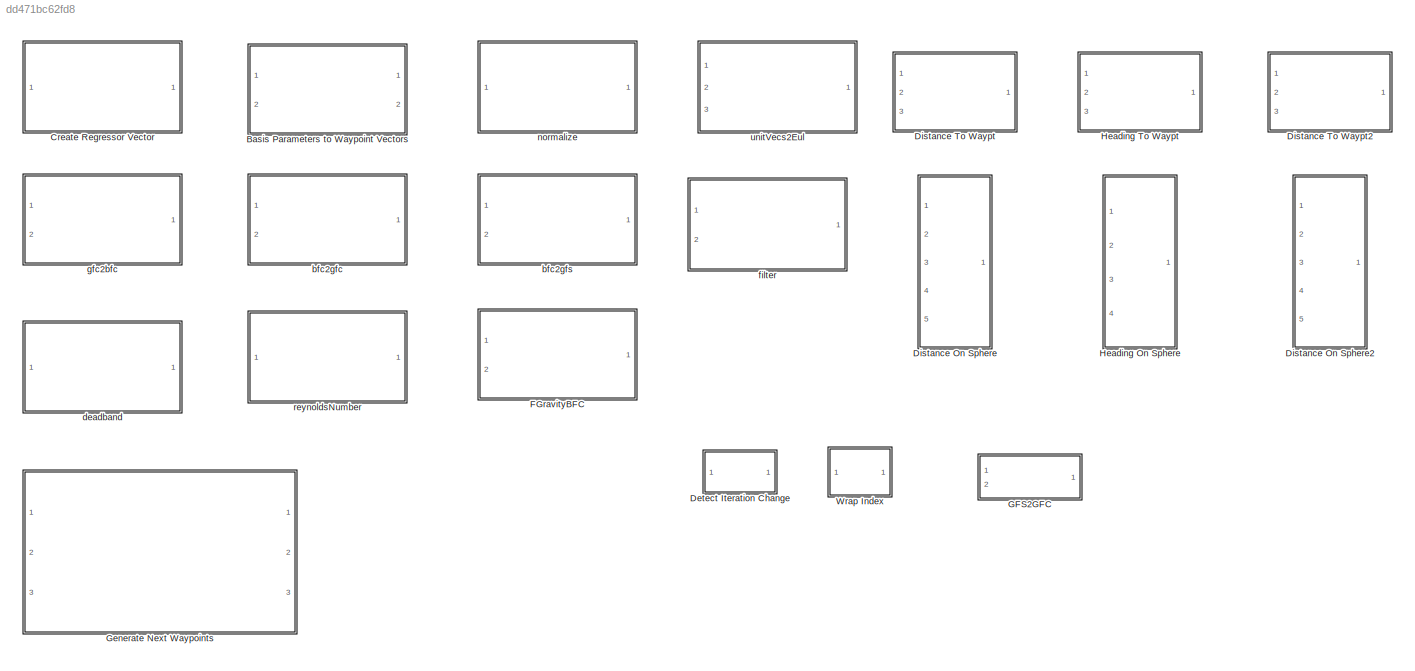
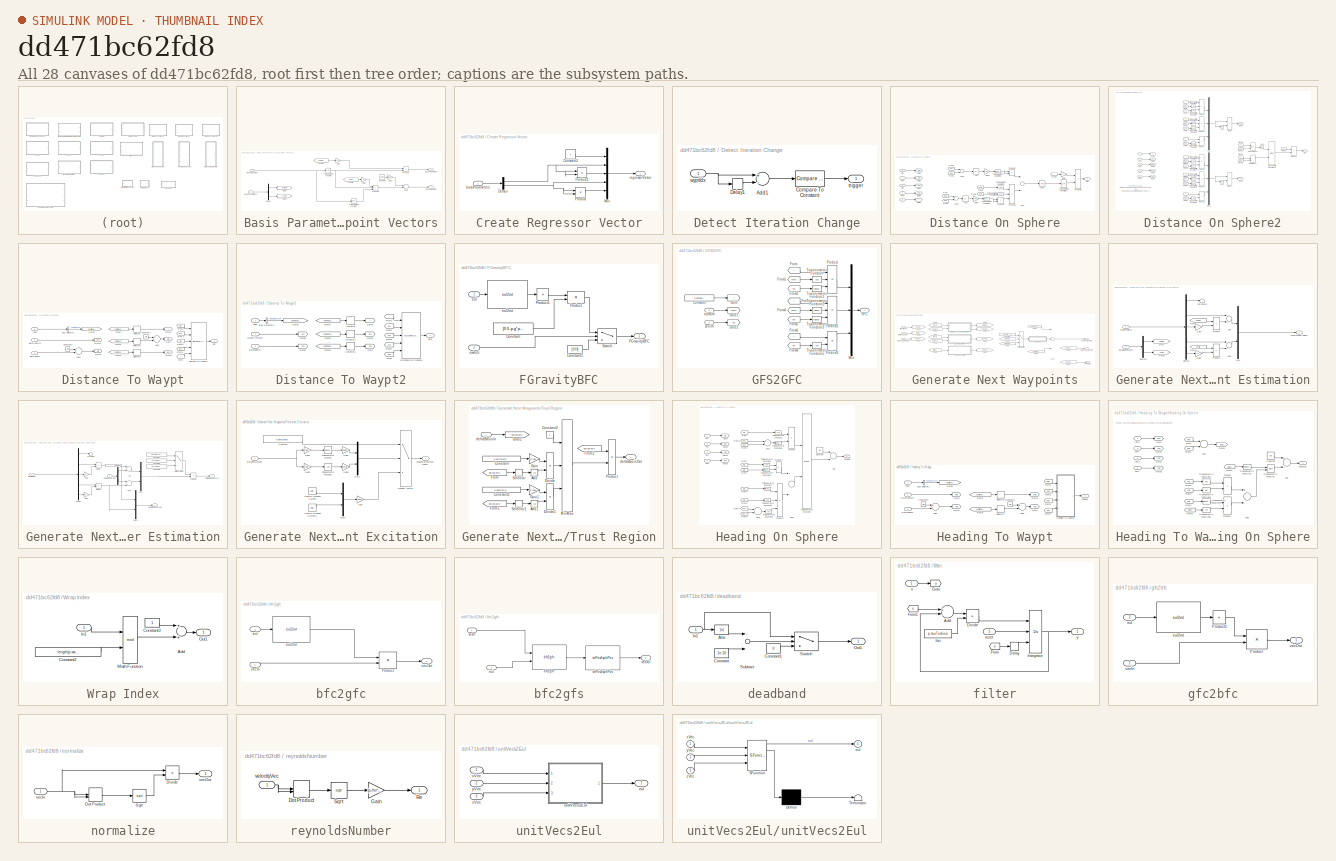
[diagram: thumbnail index - all 28 canvases of the model, root first then tree order]
MODEL slx_dd471bc62fd8
KIND library
CONFIG AbsTol = auto
CONFIG EnableMultiTasking = off
CONFIG FixedStep = auto
CONFIG MaxStep = auto
CONFIG MinStep = auto
CONFIG RelTol = 1e-3
CONFIG SampleTimeConstraint = Unconstrained
CONFIG Solver = VariableStepAuto
CONFIG SolverName = VariableStepAuto
CONFIG StartTime = 0.0
CONFIG StopTime = 10.0
BLOCK [SubSystem] Basis Parameters to Waypoint Vectors
  Ports = [2, 2]
  RequestExecContextInheritance = off
BLOCK [Sum] Basis Parameters to Waypoint Vectors/Add2
  InputSameDT = off
  OutDataTypeStr = Inherit: Inherit via internal rule
  Ports = [2, 1]
  SaturateOnIntegerOverflow = off
BLOCK [Constant] Basis Parameters to Waypoint Vectors/Constant3
  Value = p.elev
BLOCK [Demux] Basis Parameters to Waypoint Vectors/Demux
  DisplayOption = bar
  Outputs = 2
  Ports = [1, 2]
BLOCK [From] Basis Parameters to Waypoint Vectors/From4
  GotoTag = azimuth
BLOCK [From] Basis Parameters to Waypoint Vectors/From5
  GotoTag = zenith
BLOCK [Gain] Basis Parameters to Waypoint Vectors/Gain
  Gain = 1/2
  OutDataTypeStr = Inherit: Inherit via internal rule
  ParamDataTypeStr = Inherit: Inherit via internal rule
  SaturateOnIntegerOverflow = off
BLOCK [Gain] Basis Parameters to Waypoint Vectors/Gain1
  Gain = -1
  OutDataTypeStr = Inherit: Inherit via internal rule
  ParamDataTypeStr = Inherit: Inherit via internal rule
  SaturateOnIntegerOverflow = off
BLOCK [Gain] Basis Parameters to Waypoint Vectors/Gain2
  Gain = pi/180
  OutDataTypeStr = Inherit: Inherit via internal rule
  ParamDataTypeStr = Inherit: Inherit via internal rule
  SaturateOnIntegerOverflow = off
BLOCK [Goto] Basis Parameters to Waypoint Vectors/Goto2
  GotoTag = azimuth
BLOCK [Goto] Basis Parameters to Waypoint Vectors/Goto3
  GotoTag = zenith
BLOCK [Product] Basis Parameters to Waypoint Vectors/Product
  InputSameDT = off
  OutDataTypeStr = Inherit: Inherit via internal rule
  Ports = [2, 1]
  RndMeth = Floor
  SaturateOnIntegerOverflow = off
BLOCK [Product] Basis Parameters to Waypoint Vectors/Product1
  InputSameDT = off
  Inputs = 3
  OutDataTypeStr = Inherit: Inherit via internal rule
  Ports = [3, 1]
  RndMeth = Floor
  SaturateOnIntegerOverflow = off
BLOCK [Trigonometry] Basis Parameters to Waypoint Vectors/Trigonometric Function
  Operator = cos
  Ports = [1, 1]
BLOCK [Trigonometry] Basis Parameters to Waypoint Vectors/Trigonometric Function2
  Ports = [1, 1]
BLOCK [Inport] Basis Parameters to Waypoint Vectors/basisParameters
  IconDisplay = Port number
BLOCK [Inport] Basis Parameters to Waypoint Vectors/waypointAngles
  IconDisplay = Port number
  Port = 2
BLOCK [Outport] Basis Parameters to Waypoint Vectors/waypointAzimuths
  IconDisplay = Port number
BLOCK [Outport] Basis Parameters to Waypoint Vectors/waypointZeniths
  IconDisplay = Port number
  Port = 2
BLOCK [SubSystem] Create Regressor Vector
  Ports = [1, 1]
  RequestExecContextInheritance = off
BLOCK [Constant] Create Regressor Vector/Constant2
BLOCK [Demux] Create Regressor Vector/Demux
  DisplayOption = bar
  Outputs = 2
  Ports = [1, 2]
BLOCK [Mux] Create Regressor Vector/Mux
  DisplayOption = bar
  Inputs = 5
  Ports = [5, 1]
BLOCK [Product] Create Regressor Vector/Product
  InputSameDT = off
  OutDataTypeStr = Inherit: Inherit via internal rule
  Ports = [2, 1]
  RndMeth = Floor
  SaturateOnIntegerOverflow = off
BLOCK [Product] Create Regressor Vector/Product1
  InputSameDT = off
  OutDataTypeStr = Inherit: Inherit via internal rule
  Ports = [2, 1]
  RndMeth = Floor
  SaturateOnIntegerOverflow = off
BLOCK [Inport] Create Regressor Vector/basisParameters
  IconDisplay = Port number
  PortDimensions = 2
BLOCK [Outport] Create Regressor Vector/regressorVector
  IconDisplay = Port number
  PortDimensions = 5
BLOCK [SubSystem] Detect Iteration Change
  Ports = [1, 1]
  RequestExecContextInheritance = off
BLOCK [Sum] Detect Iteration Change/Add1
  InputSameDT = off
  Inputs = +-
  OutDataTypeStr = Inherit: Inherit via internal rule
  Ports = [2, 1]
  SaturateOnIntegerOverflow = off
BLOCK [Reference] Detect Iteration Change/Compare To Constant  REF=simulink/Logic and Bit
Operations/Compare
To Constant
  Ports = [1, 1]
  SourceBlock = simulink/Logic and Bit\nOperations/Compare\nTo Constant
  SourceProductBaseCode = SL
  SourceProductName = Simulink
  SourceType = Compare To Constant
BLOCK [Delay] Detect Iteration Change/Delay1
  DelayLength = 1
  InitialCondition = 0
  InputPortMap = u0
  Ports = [1, 1]
BLOCK [Outport] Detect Iteration Change/trigger
  IconDisplay = Port number
BLOCK [Inport] Detect Iteration Change/wyptIdx
  IconDisplay = Port number
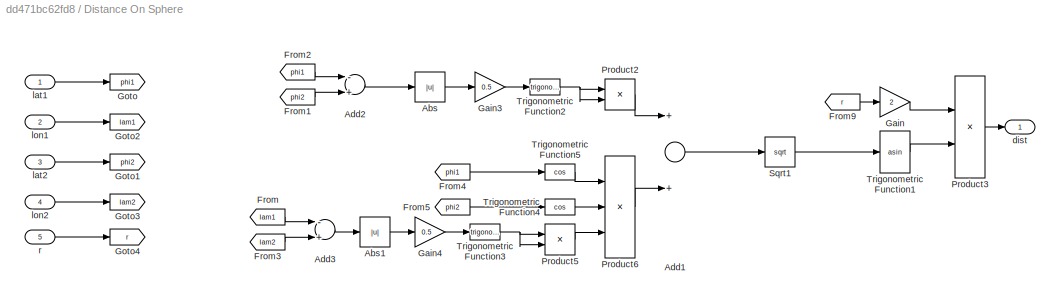
BLOCK [SubSystem] Distance On Sphere
  Ports = [5, 1]
  RequestExecContextInheritance = off
BLOCK [Abs] Distance On Sphere/Abs
  SaturateOnIntegerOverflow = off
BLOCK [Abs] Distance On Sphere/Abs1
  SaturateOnIntegerOverflow = off
BLOCK [Sum] Distance On Sphere/Add1
  InputSameDT = off
  OutDataTypeStr = Inherit: Inherit via internal rule
  Ports = [2, 1]
  SaturateOnIntegerOverflow = off
BLOCK [Sum] Distance On Sphere/Add2
  InputSameDT = off
  Inputs = -+
  OutDataTypeStr = Inherit: Inherit via internal rule
  Ports = [2, 1]
  SaturateOnIntegerOverflow = off
BLOCK [Sum] Distance On Sphere/Add3
  InputSameDT = off
  Inputs = -+
  OutDataTypeStr = Inherit: Inherit via internal rule
  Ports = [2, 1]
  SaturateOnIntegerOverflow = off
BLOCK [From] Distance On Sphere/From
  GotoTag = lam1
BLOCK [From] Distance On Sphere/From1
  GotoTag = phi2
BLOCK [From] Distance On Sphere/From2
  GotoTag = phi1
BLOCK [From] Distance On Sphere/From3
  GotoTag = lam2
BLOCK [From] Distance On Sphere/From4
  GotoTag = phi1
BLOCK [From] Distance On Sphere/From5
  GotoTag = phi2
BLOCK [From] Distance On Sphere/From9
  GotoTag = r
BLOCK [Gain] Distance On Sphere/Gain
  Gain = 2
  OutDataTypeStr = Inherit: Inherit via internal rule
  ParamDataTypeStr = Inherit: Inherit via internal rule
  SaturateOnIntegerOverflow = off
BLOCK [Gain] Distance On Sphere/Gain3
  Gain = 0.5
  OutDataTypeStr = Inherit: Inherit via internal rule
  ParamDataTypeStr = Inherit: Inherit via internal rule
  SaturateOnIntegerOverflow = off
BLOCK [Gain] Distance On Sphere/Gain4
  Gain = 0.5
  OutDataTypeStr = Inherit: Inherit via internal rule
  ParamDataTypeStr = Inherit: Inherit via internal rule
  SaturateOnIntegerOverflow = off
BLOCK [Goto] Distance On Sphere/Goto
  GotoTag = phi1
BLOCK [Goto] Distance On Sphere/Goto1
  GotoTag = phi2
BLOCK [Goto] Distance On Sphere/Goto2
  GotoTag = lam1
BLOCK [Goto] Distance On Sphere/Goto3
  GotoTag = lam2
BLOCK [Goto] Distance On Sphere/Goto4
  GotoTag = r
BLOCK [Product] Distance On Sphere/Product2
  InputSameDT = off
  OutDataTypeStr = Inherit: Inherit via internal rule
  Ports = [2, 1]
  RndMeth = Floor
  SaturateOnIntegerOverflow = off
BLOCK [Product] Distance On Sphere/Product3
  InputSameDT = off
  OutDataTypeStr = Inherit: Inherit via internal rule
  Ports = [2, 1]
  RndMeth = Floor
  SaturateOnIntegerOverflow = off
BLOCK [Product] Distance On Sphere/Product5
  InputSameDT = off
  OutDataTypeStr = Inherit: Inherit via internal rule
  Ports = [2, 1]
  RndMeth = Floor
  SaturateOnIntegerOverflow = off
BLOCK [Product] Distance On Sphere/Product6
  InputSameDT = off
  Inputs = 3
  OutDataTypeStr = Inherit: Inherit via internal rule
  Ports = [3, 1]
  RndMeth = Floor
  SaturateOnIntegerOverflow = off
BLOCK [Sqrt] Distance On Sphere/Sqrt1
BLOCK [Trigonometry] Distance On Sphere/Trigonometric Function1
  Operator = asin
  Ports = [1, 1]
BLOCK [Trigonometry] Distance On Sphere/Trigonometric Function2
  Ports = [1, 1]
BLOCK [Trigonometry] Distance On Sphere/Trigonometric Function3
  Ports = [1, 1]
BLOCK [Trigonometry] Distance On Sphere/Trigonometric Function4
  Operator = cos
  Ports = [1, 1]
BLOCK [Trigonometry] Distance On Sphere/Trigonometric Function5
  Operator = cos
  Ports = [1, 1]
BLOCK [Outport] Distance On Sphere/dist
  IconDisplay = Port number
BLOCK [Inport] Distance On Sphere/lat1
  IconDisplay = Port number
BLOCK [Inport] Distance On Sphere/lat2
  IconDisplay = Port number
  Port = 3
BLOCK [Inport] Distance On Sphere/lon1
  IconDisplay = Port number
  Port = 2
BLOCK [Inport] Distance On Sphere/lon2
  IconDisplay = Port number
  Port = 4
BLOCK [Inport] Distance On Sphere/r
  IconDisplay = Port number
  Port = 5
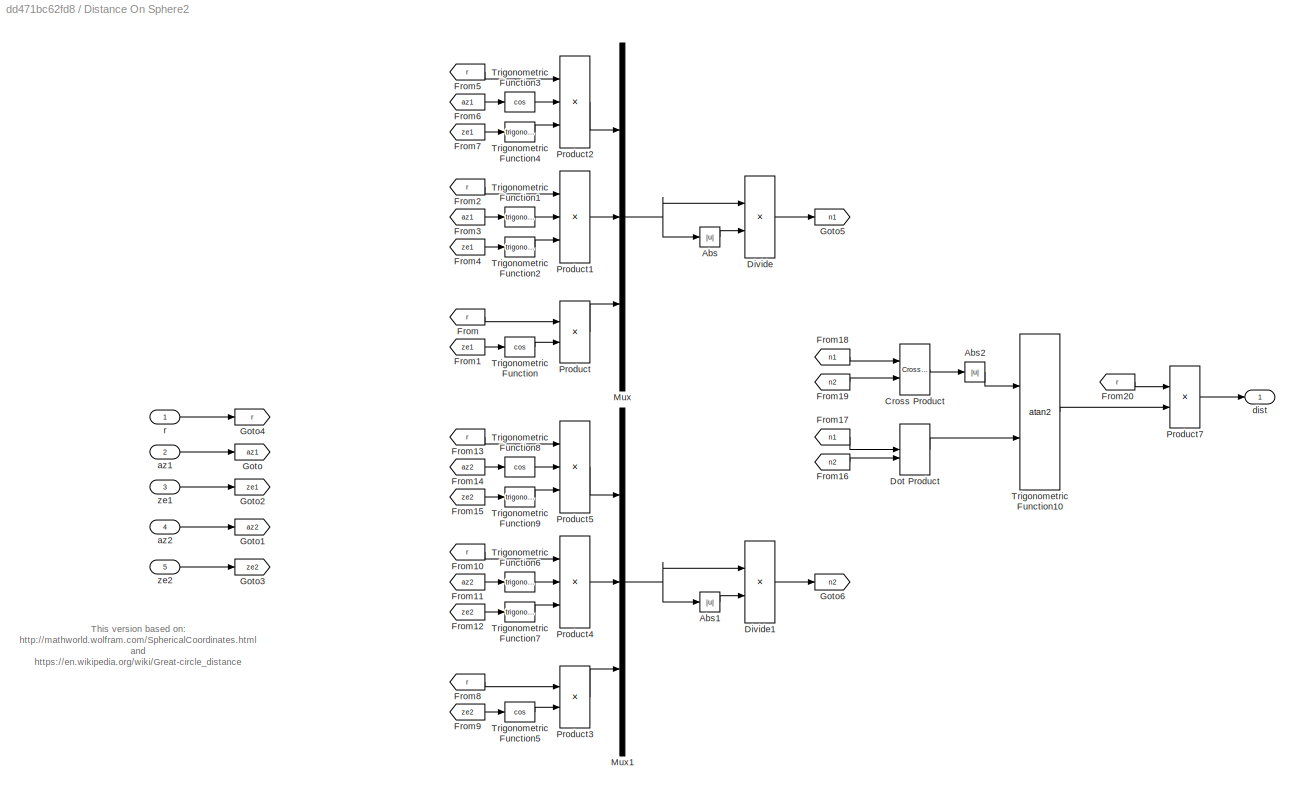
BLOCK [SubSystem] Distance On Sphere2
  Ports = [5, 1]
  RequestExecContextInheritance = off
BLOCK [Abs] Distance On Sphere2/Abs
  SaturateOnIntegerOverflow = off
BLOCK [Abs] Distance On Sphere2/Abs1
  SaturateOnIntegerOverflow = off
BLOCK [Abs] Distance On Sphere2/Abs2
  SaturateOnIntegerOverflow = off
BLOCK [Reference] Distance On Sphere2/Cross Product  REF=vrlib/Utilities/Cross Product
  Ports = [2, 1]
  SourceBlock = vrlib/Utilities/Cross Product
  SourceProductBaseCode = VR
  SourceProductName = Simulink 3D Animation
  SourceType = Cross Product
BLOCK [Product] Distance On Sphere2/Divide
  InputSameDT = off
  Inputs = */
  OutDataTypeStr = Inherit: Inherit via internal rule
  Ports = [2, 1]
  RndMeth = Floor
  SaturateOnIntegerOverflow = off
BLOCK [Product] Distance On Sphere2/Divide1
  InputSameDT = off
  Inputs = */
  OutDataTypeStr = Inherit: Inherit via internal rule
  Ports = [2, 1]
  RndMeth = Floor
  SaturateOnIntegerOverflow = off
BLOCK [DotProduct] Distance On Sphere2/Dot Product
  OutDataTypeStr = Inherit: Inherit via internal rule
BLOCK [From] Distance On Sphere2/From
  GotoTag = r
BLOCK [From] Distance On Sphere2/From1
  GotoTag = ze1
BLOCK [From] Distance On Sphere2/From10
  GotoTag = r
BLOCK [From] Distance On Sphere2/From11
  GotoTag = az2
BLOCK [From] Distance On Sphere2/From12
  GotoTag = ze2
BLOCK [From] Distance On Sphere2/From13
  GotoTag = r
BLOCK [From] Distance On Sphere2/From14
  GotoTag = az2
BLOCK [From] Distance On Sphere2/From15
  GotoTag = ze2
BLOCK [From] Distance On Sphere2/From16
  GotoTag = n2
BLOCK [From] Distance On Sphere2/From17
  GotoTag = n1
BLOCK [From] Distance On Sphere2/From18
  GotoTag = n1
BLOCK [From] Distance On Sphere2/From19
  GotoTag = n2
BLOCK [From] Distance On Sphere2/From2
  GotoTag = r
BLOCK [From] Distance On Sphere2/From20
  GotoTag = r
BLOCK [From] Distance On Sphere2/From3
  GotoTag = az1
BLOCK [From] Distance On Sphere2/From4
  GotoTag = ze1
BLOCK [From] Distance On Sphere2/From5
  GotoTag = r
BLOCK [From] Distance On Sphere2/From6
  GotoTag = az1
BLOCK [From] Distance On Sphere2/From7
  GotoTag = ze1
BLOCK [From] Distance On Sphere2/From8
  GotoTag = r
BLOCK [From] Distance On Sphere2/From9
  GotoTag = ze2
BLOCK [Goto] Distance On Sphere2/Goto
  GotoTag = az1
BLOCK [Goto] Distance On Sphere2/Goto1
  GotoTag = az2
BLOCK [Goto] Distance On Sphere2/Goto2
  GotoTag = ze1
BLOCK [Goto] Distance On Sphere2/Goto3
  GotoTag = ze2
BLOCK [Goto] Distance On Sphere2/Goto4
  GotoTag = r
BLOCK [Goto] Distance On Sphere2/Goto5
  GotoTag = n1
BLOCK [Goto] Distance On Sphere2/Goto6
  GotoTag = n2
BLOCK [Mux] Distance On Sphere2/Mux
  DisplayOption = bar
  Inputs = 3
  Ports = [3, 1]
BLOCK [Mux] Distance On Sphere2/Mux1
  DisplayOption = bar
  Inputs = 3
  Ports = [3, 1]
BLOCK [Product] Distance On Sphere2/Product
  InputSameDT = off
  OutDataTypeStr = Inherit: Inherit via internal rule
  Ports = [2, 1]
  RndMeth = Floor
  SaturateOnIntegerOverflow = off
BLOCK [Product] Distance On Sphere2/Product1
  InputSameDT = off
  Inputs = 3
  OutDataTypeStr = Inherit: Inherit via internal rule
  Ports = [3, 1]
  RndMeth = Floor
  SaturateOnIntegerOverflow = off
BLOCK [Product] Distance On Sphere2/Product2
  InputSameDT = off
  Inputs = 3
  OutDataTypeStr = Inherit: Inherit via internal rule
  Ports = [3, 1]
  RndMeth = Floor
  SaturateOnIntegerOverflow = off
BLOCK [Product] Distance On Sphere2/Product3
  InputSameDT = off
  OutDataTypeStr = Inherit: Inherit via internal rule
  Ports = [2, 1]
  RndMeth = Floor
  SaturateOnIntegerOverflow = off
BLOCK [Product] Distance On Sphere2/Product4
  InputSameDT = off
  Inputs = 3
  OutDataTypeStr = Inherit: Inherit via internal rule
  Ports = [3, 1]
  RndMeth = Floor
  SaturateOnIntegerOverflow = off
BLOCK [Product] Distance On Sphere2/Product5
  InputSameDT = off
  Inputs = 3
  OutDataTypeStr = Inherit: Inherit via internal rule
  Ports = [3, 1]
  RndMeth = Floor
  SaturateOnIntegerOverflow = off
BLOCK [Product] Distance On Sphere2/Product7
  InputSameDT = off
  OutDataTypeStr = Inherit: Inherit via internal rule
  Ports = [2, 1]
  RndMeth = Floor
  SaturateOnIntegerOverflow = off
BLOCK [Trigonometry] Distance On Sphere2/Trigonometric Function
  Operator = cos
  Ports = [1, 1]
BLOCK [Trigonometry] Distance On Sphere2/Trigonometric Function1
  Ports = [1, 1]
BLOCK [Trigonometry] Distance On Sphere2/Trigonometric Function10
  Operator = atan2
  Ports = [2, 1]
BLOCK [Trigonometry] Distance On Sphere2/Trigonometric Function2
  Ports = [1, 1]
BLOCK [Trigonometry] Distance On Sphere2/Trigonometric Function3
  Operator = cos
  Ports = [1, 1]
BLOCK [Trigonometry] Distance On Sphere2/Trigonometric Function4
  Ports = [1, 1]
BLOCK [Trigonometry] Distance On Sphere2/Trigonometric Function5
  Operator = cos
  Ports = [1, 1]
BLOCK [Trigonometry] Distance On Sphere2/Trigonometric Function6
  Ports = [1, 1]
BLOCK [Trigonometry] Distance On Sphere2/Trigonometric Function7
  Ports = [1, 1]
BLOCK [Trigonometry] Distance On Sphere2/Trigonometric Function8
  Operator = cos
  Ports = [1, 1]
BLOCK [Trigonometry] Distance On Sphere2/Trigonometric Function9
  Ports = [1, 1]
BLOCK [Inport] Distance On Sphere2/az1
  IconDisplay = Port number
  Port = 2
BLOCK [Inport] Distance On Sphere2/az2
  IconDisplay = Port number
  Port = 4
BLOCK [Outport] Distance On Sphere2/dist
  IconDisplay = Port number
BLOCK [Inport] Distance On Sphere2/r
  IconDisplay = Port number
BLOCK [Inport] Distance On Sphere2/ze1
  IconDisplay = Port number
  Port = 3
BLOCK [Inport] Distance On Sphere2/ze2
  IconDisplay = Port number
  Port = 5
BLOCK [SubSystem] Distance To Waypt
  Ports = [3, 1]
  RequestExecContextInheritance = off
BLOCK [Sum] Distance To Waypt/Add2
  InputSameDT = off
  Inputs = +-
  OutDataTypeStr = Inherit: Inherit via internal rule
  Ports = [2, 1]
  SaturateOnIntegerOverflow = off
BLOCK [Sum] Distance To Waypt/Add3
  InputSameDT = off
  Inputs = +-
  OutDataTypeStr = Inherit: Inherit via internal rule
  Ports = [2, 1]
  SaturateOnIntegerOverflow = off
BLOCK [BusSelector] Distance To Waypt/Bus Selector1
  OutputAsBus = off
  OutputSignals = positionGFS
  Ports = [1, 1]
BLOCK [Constant] Distance To Waypt/Constant1
  Value = pi/2
BLOCK [Constant] Distance To Waypt/Constant2
  Value = pi/2
BLOCK [Reference] Distance To Waypt/Distance On Sphere  REF=$bdroot/Distance
On Sphere
  Ports = [5, 1]
  SourceBlock = $bdroot/Distance\nOn Sphere
  SourceType = SubSystem
BLOCK [From] Distance To Waypt/From
  GotoTag = r
BLOCK [From] Distance To Waypt/From1
  GotoTag = lon1
BLOCK [From] Distance To Waypt/From2
  GotoTag = lat1
BLOCK [From] Distance To Waypt/From3
  GotoTag = lat2
BLOCK [From] Distance To Waypt/From4
  GotoTag = lon2
BLOCK [From] Distance To Waypt/From7
  GotoTag = positionGFS
BLOCK [From] Distance To Waypt/From8
  GotoTag = positionGFS
BLOCK [From] Distance To Waypt/From9
  GotoTag = positionGFS
BLOCK [Goto] Distance To Waypt/Goto
  GotoTag = lat1
BLOCK [Goto] Distance To Waypt/Goto1
  GotoTag = lon1
BLOCK [Goto] Distance To Waypt/Goto2
  GotoTag = lat2
BLOCK [Goto] Distance To Waypt/Goto3
  GotoTag = lon2
BLOCK [Goto] Distance To Waypt/Goto4
  GotoTag = r
BLOCK [Goto] Distance To Waypt/Goto5
  GotoTag = positionGFS
BLOCK [Selector] Distance To Waypt/Selector
  IndexOptions = Index vector (dialog)
  Indices = 1
  InputPortWidth = 3
  OutputSizes = 1
  Ports = [1, 1]
BLOCK [Selector] Distance To Waypt/Selector1
  IndexOptions = Index vector (dialog)
  Indices = 3
  InputPortWidth = 3
  OutputSizes = 1
  Ports = [1, 1]
BLOCK [Selector] Distance To Waypt/Selector2
  IndexOptions = Index vector (dialog)
  Indices = 2
  InputPortWidth = 3
  OutputSizes = 1
  Ports = [1, 1]
BLOCK [Outport] Distance To Waypt/dist
  IconDisplay = Port number
BLOCK [Inport] Distance To Waypt/fdbk
  IconDisplay = Port number
BLOCK [Inport] Distance To Waypt/wayptAzimuth
  IconDisplay = Port number
  Port = 2
BLOCK [Inport] Distance To Waypt/wayptZenith
  IconDisplay = Port number
  Port = 3
BLOCK [SubSystem] Distance To Waypt2
  Ports = [3, 1]
  RequestExecContextInheritance = off
BLOCK [BusSelector] Distance To Waypt2/Bus Selector1
  OutputAsBus = off
  OutputSignals = positionGFS
  Ports = [1, 1]
BLOCK [Reference] Distance To Waypt2/Distance On Sphere2  REF=$bdroot/Distance
On Sphere2
  Ports = [5, 1]
  SourceBlock = $bdroot/Distance\nOn Sphere2
  SourceType = SubSystem
BLOCK [From] Distance To Waypt2/From
  GotoTag = ze2
BLOCK [From] Distance To Waypt2/From1
  GotoTag = az1
BLOCK [From] Distance To Waypt2/From2
  GotoTag = r
BLOCK [From] Distance To Waypt2/From3
  GotoTag = ze1
BLOCK [From] Distance To Waypt2/From4
  GotoTag = az2
BLOCK [From] Distance To Waypt2/From7
  GotoTag = positionGFS
BLOCK [From] Distance To Waypt2/From8
  GotoTag = positionGFS
BLOCK [From] Distance To Waypt2/From9
  GotoTag = positionGFS
BLOCK [Goto] Distance To Waypt2/Goto
  GotoTag = ze1
BLOCK [Goto] Distance To Waypt2/Goto1
  GotoTag = az1
BLOCK [Goto] Distance To Waypt2/Goto2
  GotoTag = ze2
BLOCK [Goto] Distance To Waypt2/Goto3
  GotoTag = az2
BLOCK [Goto] Distance To Waypt2/Goto4
  GotoTag = r
BLOCK [Goto] Distance To Waypt2/Goto5
  GotoTag = positionGFS
BLOCK [Selector] Distance To Waypt2/Selector
  IndexOptions = Index vector (dialog)
  Indices = 1
  InputPortWidth = 3
  OutputSizes = 1
  Ports = [1, 1]
BLOCK [Selector] Distance To Waypt2/Selector1
  IndexOptions = Index vector (dialog)
  Indices = 3
  InputPortWidth = 3
  OutputSizes = 1
  Ports = [1, 1]
BLOCK [Selector] Distance To Waypt2/Selector2
  IndexOptions = Index vector (dialog)
  Indices = 2
  InputPortWidth = 3
  OutputSizes = 1
  Ports = [1, 1]
BLOCK [Outport] Distance To Waypt2/dist
  IconDisplay = Port number
BLOCK [Inport] Distance To Waypt2/fdbk
  IconDisplay = Port number
BLOCK [Inport] Distance To Waypt2/wayptAzimuth
  IconDisplay = Port number
  Port = 2
BLOCK [Inport] Distance To Waypt2/wayptZenith
  IconDisplay = Port number
  Port = 3
BLOCK [SubSystem] FGravityBFC
  Ports = [2, 1]
  RequestExecContextInheritance = off
BLOCK [Constant] FGravityBFC/Constant
  Value = [0 0 -p.g*p.mass]'
BLOCK [Constant] FGravityBFC/Constant1
  Value = [0 0 0]
BLOCK [Outport] FGravityBFC/FGravityBFC
  IconDisplay = Port number
BLOCK [Product] FGravityBFC/Product
  InputSameDT = off
  Multiplication = Matrix(*)
  OutDataTypeStr = Inherit: Inherit via internal rule
  Ports = [2, 1]
  RndMeth = Floor
  SaturateOnIntegerOverflow = off
BLOCK [Product] FGravityBFC/Product1
  InputSameDT = off
  Inputs = /
  Multiplication = Matrix(*)
  OutDataTypeStr = Inherit: Inherit via internal rule
  Ports = [1, 1]
  RndMeth = Floor
  SaturateOnIntegerOverflow = off
BLOCK [Switch] FGravityBFC/Switch
  Criteria = u2 ~= 0
  InputSameDT = off
  SaturateOnIntegerOverflow = off
BLOCK [Inport] FGravityBFC/eul
  IconDisplay = Port number
BLOCK [Reference] FGravityBFC/eul2rot  REF=lowLevel/eul2rot
  Ports = [1, 1]
  SourceBlock = lowLevel/eul2rot
  SourceType = SubSystem
BLOCK [Inport] FGravityBFC/switch
  IconDisplay = Port number
  Port = 2
BLOCK [SubSystem] GFS2GFC
  Ports = [2, 1]
  RequestExecContextInheritance = off
BLOCK [Constant] GFS2GFC/Constant
  Value = p.initPositionGFS(1)
BLOCK [From] GFS2GFC/From
  GotoTag = r
BLOCK [From] GFS2GFC/From1
  GotoTag = theta
BLOCK [From] GFS2GFC/From2
  GotoTag = phi
BLOCK [From] GFS2GFC/From3
  GotoTag = r
BLOCK [From] GFS2GFC/From4
  GotoTag = theta
BLOCK [From] GFS2GFC/From5
  GotoTag = phi
BLOCK [From] GFS2GFC/From6
  GotoTag = r
BLOCK [From] GFS2GFC/From8
  GotoTag = phi
BLOCK [Outport] GFS2GFC/GFC
  IconDisplay = Port number
BLOCK [Goto] GFS2GFC/Goto
  GotoTag = r
BLOCK [Goto] GFS2GFC/Goto1
  GotoTag = theta
BLOCK [Goto] GFS2GFC/Goto2
  GotoTag = phi
BLOCK [Mux] GFS2GFC/Mux
  DisplayOption = bar
  Inputs = 3
  Ports = [3, 1]
BLOCK [Product] GFS2GFC/Product
  InputSameDT = off
  Inputs = 3
  OutDataTypeStr = Inherit: Inherit via internal rule
  Ports = [3, 1]
  RndMeth = Floor
  SaturateOnIntegerOverflow = off
BLOCK [Product] GFS2GFC/Product1
  InputSameDT = off
  Inputs = 3
  OutDataTypeStr = Inherit: Inherit via internal rule
  Ports = [3, 1]
  RndMeth = Floor
  SaturateOnIntegerOverflow = off
BLOCK [Product] GFS2GFC/Product2
  InputSameDT = off
  OutDataTypeStr = Inherit: Inherit via internal rule
  Ports = [2, 1]
  RndMeth = Floor
  SaturateOnIntegerOverflow = off
BLOCK [Trigonometry] GFS2GFC/Trigonometric Function
  Operator = cos
  Ports = [1, 1]
BLOCK [Trigonometry] GFS2GFC/Trigonometric Function1
  Ports = [1, 1]
BLOCK [Trigonometry] GFS2GFC/Trigonometric Function2
  Ports = [1, 1]
BLOCK [Trigonometry] GFS2GFC/Trigonometric Function3
  Ports = [1, 1]
BLOCK [Trigonometry] GFS2GFC/Trigonometric Function5
  Operator = cos
  Ports = [1, 1]
BLOCK [Inport] GFS2GFC/azimuth
  IconDisplay = Port number
BLOCK [Inport] GFS2GFC/zenith 
  IconDisplay = Port number
  Port = 2
BLOCK [SubSystem] Generate Next Waypoints
  Ports = [3, 3]
  RequestExecContextInheritance = off
BLOCK [Sum] Generate Next Waypoints/Add1
  InputSameDT = off
  Inputs = +++
  OutDataTypeStr = Inherit: Inherit via internal rule
  Ports = [3, 1]
  SaturateOnIntegerOverflow = off
BLOCK [Constant] Generate Next Waypoints/Constant
  Value = p.updateTypeSwitch
BLOCK [From] Generate Next Waypoints/From
  GotoTag = fitCoefficients
BLOCK [From] Generate Next Waypoints/From1
  GotoTag = fitCoefficients
BLOCK [From] Generate Next Waypoints/From10
  GotoTag = gradientBasedTerm
BLOCK [From] Generate Next Waypoints/From2
  GotoTag = iterationNumber
BLOCK [From] Generate Next Waypoints/From3
  GotoTag = lastBasisParams
BLOCK [From] Generate Next Waypoints/From4
  GotoTag = persistentExcitation
BLOCK [From] Generate Next Waypoints/From5
  GotoTag = gradientBasedTerm
BLOCK [From] Generate Next Waypoints/From6
  GotoTag = lastBasisParams
BLOCK [From] Generate Next Waypoints/From7
  GotoTag = lastBasisParams
BLOCK [From] Generate Next Waypoints/From8
  GotoTag = optimalBasedTerm
BLOCK [From] Generate Next Waypoints/From9
  GotoTag = estOptBasisParams
BLOCK [Goto] Generate Next Waypoints/Goto
  GotoTag = lastBasisParams
BLOCK [Goto] Generate Next Waypoints/Goto1
  GotoTag = fitCoefficients
BLOCK [Goto] Generate Next Waypoints/Goto2
  GotoTag = iterationNumber
BLOCK [Goto] Generate Next Waypoints/Goto3
  GotoTag = persistentExcitation
BLOCK [Goto] Generate Next Waypoints/Goto4
  GotoTag = optimalBasedTerm
BLOCK [Goto] Generate Next Waypoints/Goto5
  GotoTag = gradientBasedTerm
BLOCK [Goto] Generate Next Waypoints/Goto6
  GotoTag = estOptBasisParams
BLOCK [SubSystem] Generate Next Waypoints/Gradient Estimation
  Ports = [2, 1]
  RequestExecContextInheritance = off
BLOCK [Sum] Generate Next Waypoints/Gradient Estimation/Add
  InputSameDT = off
  OutDataTypeStr = Inherit: Inherit via internal rule
  Ports = [2, 1]
  SaturateOnIntegerOverflow = off
BLOCK [Sum] Generate Next Waypoints/Gradient Estimation/Add1
  InputSameDT = off
  OutDataTypeStr = Inherit: Inherit via internal rule
  Ports = [2, 1]
  SaturateOnIntegerOverflow = off
BLOCK [Demux] Generate Next Waypoints/Gradient Estimation/Demux
  DisplayOption = bar
  Outputs = 5
  Ports = [1, 5]
BLOCK [Demux] Generate Next Waypoints/Gradient Estimation/Demux1
  DisplayOption = bar
  Outputs = 2
  Ports = [1, 2]
BLOCK [From] Generate Next Waypoints/Gradient Estimation/From
  GotoTag = azimuth
BLOCK [From] Generate Next Waypoints/Gradient Estimation/From1
  GotoTag = zenith
BLOCK [Gain] Generate Next Waypoints/Gradient Estimation/Gain
  Gain = 2
  OutDataTypeStr = Inherit: Inherit via internal rule
  ParamDataTypeStr = Inherit: Inherit via internal rule
  SaturateOnIntegerOverflow = off
BLOCK [Gain] Generate Next Waypoints/Gradient Estimation/Gain2
  Gain = 2
  OutDataTypeStr = Inherit: Inherit via internal rule
  ParamDataTypeStr = Inherit: Inherit via internal rule
  SaturateOnIntegerOverflow = off
BLOCK [Goto] Generate Next Waypoints/Gradient Estimation/Goto
  GotoTag = azimuth
BLOCK [Goto] Generate Next Waypoints/Gradient Estimation/Goto1
  GotoTag = zenith
BLOCK [Mux] Generate Next Waypoints/Gradient Estimation/Mux
  DisplayOption = bar
  Inputs = 2
  Ports = [2, 1]
BLOCK [Product] Generate Next Waypoints/Gradient Estimation/Product
  InputSameDT = off
  OutDataTypeStr = Inherit: Inherit via internal rule
  Ports = [2, 1]
  RndMeth = Floor
  SaturateOnIntegerOverflow = off
BLOCK [Product] Generate Next Waypoints/Gradient Estimation/Product1
  InputSameDT = off
  OutDataTypeStr = Inherit: Inherit via internal rule
  Ports = [2, 1]
  RndMeth = Floor
  SaturateOnIntegerOverflow = off
BLOCK [Terminator] Generate Next Waypoints/Gradient Estimation/Terminator
BLOCK [Outport] Generate Next Waypoints/Gradient Estimation/estimatedGradient
  IconDisplay = Port number
BLOCK [Inport] Generate Next Waypoints/Gradient Estimation/fitCoefficients
  IconDisplay = Port number
  PortDimensions = 5
BLOCK [Inport] Generate Next Waypoints/Gradient Estimation/lastBasisParams
  IconDisplay = Port number
  Port = 2
  PortDimensions = 2
BLOCK [MultiPortSwitch] Generate Next Waypoints/Multiport Switch
  InputSameDT = off
  Inputs = 2
  Ports = [3, 1]
  SaturateOnIntegerOverflow = off
BLOCK [SubSystem] Generate Next Waypoints/Optimal Basis Parameter Estimation
  Ports = [2, 2]
  RequestExecContextInheritance = off
BLOCK [Sum] Generate Next Waypoints/Optimal Basis Parameter Estimation/Add
  InputSameDT = off
  Inputs = +-
  OutDataTypeStr = Inherit: Inherit via internal rule
  Ports = [2, 1]
  SaturateOnIntegerOverflow = off
BLOCK [Sum] Generate Next Waypoints/Optimal Basis Parameter Estimation/Add1
  InputSameDT = off
  Inputs = -+
  OutDataTypeStr = Inherit: Inherit via internal rule
  Ports = [2, 1]
  SaturateOnIntegerOverflow = off
BLOCK [Constant] Generate Next Waypoints/Optimal Basis Parameter Estimation/Constant
  Value = p.updateTypeSwitch
BLOCK [Constant] Generate Next Waypoints/Optimal Basis Parameter Estimation/Constant1
  Value = p.KLearningNewton
BLOCK [Constant] Generate Next Waypoints/Optimal Basis Parameter Estimation/Constant2
  Value = p.KLearningGradient
BLOCK [Demux] Generate Next Waypoints/Optimal Basis Parameter Estimation/Demux
  DisplayOption = bar
  Outputs = 5
  Ports = [1, 5]
BLOCK [Demux] Generate Next Waypoints/Optimal Basis Parameter Estimation/Demux1
  DisplayOption = bar
  Outputs = 2
  Ports = [1, 2]
BLOCK [Product] Generate Next Waypoints/Optimal Basis Parameter Estimation/Divide
  InputSameDT = off
  Inputs = */
  OutDataTypeStr = Inherit: Inherit via internal rule
  Ports = [2, 1]
  RndMeth = Floor
  SaturateOnIntegerOverflow = off
BLOCK [Product] Generate Next Waypoints/Optimal Basis Parameter Estimation/Divide1
  InputSameDT = off
  Inputs = */
  OutDataTypeStr = Inherit: Inherit via internal rule
  Ports = [2, 1]
  RndMeth = Floor
  SaturateOnIntegerOverflow = off
BLOCK [Gain] Generate Next Waypoints/Optimal Basis Parameter Estimation/Gain
  Gain = -2
  OutDataTypeStr = Inherit: Inherit via internal rule
  ParamDataTypeStr = Inherit: Inherit via internal rule
  SaturateOnIntegerOverflow = off
BLOCK [Gain] Generate Next Waypoints/Optimal Basis Parameter Estimation/Gain1
  Gain = -2
  OutDataTypeStr = Inherit: Inherit via internal rule
  ParamDataTypeStr = Inherit: Inherit via internal rule
  SaturateOnIntegerOverflow = off
BLOCK [MultiPortSwitch] Generate Next Waypoints/Optimal Basis Parameter Estimation/Multiport Switch
  InputSameDT = off
  Inputs = 2
  Ports = [3, 1]
  SaturateOnIntegerOverflow = off
BLOCK [Mux] Generate Next Waypoints/Optimal Basis Parameter Estimation/Mux1
  DisplayOption = bar
  Inputs = 2
  Ports = [2, 1]
BLOCK [Mux] Generate Next Waypoints/Optimal Basis Parameter Estimation/Mux2
  DisplayOption = bar
  Inputs = 2
  Ports = [2, 1]
BLOCK [Product] Generate Next Waypoints/Optimal Basis Parameter Estimation/Product
  InputSameDT = off
  OutDataTypeStr = Inherit: Inherit via internal rule
  Ports = [2, 1]
  RndMeth = Floor
  SaturateOnIntegerOverflow = off
BLOCK [Terminator] Generate Next Waypoints/Optimal Basis Parameter Estimation/Terminator
BLOCK [Outport] Generate Next Waypoints/Optimal Basis Parameter Estimation/estOptBasisParams
  IconDisplay = Port number
  Port = 2
BLOCK [Inport] Generate Next Waypoints/Optimal Basis Parameter Estimation/fitCoefficients
  IconDisplay = Port number
  PortDimensions = 5
BLOCK [Inport] Generate Next Waypoints/Optimal Basis Parameter Estimation/lastBasisParams
  IconDisplay = Port number
  Port = 2
  PortDimensions = 2
BLOCK [Outport] Generate Next Waypoints/Optimal Basis Parameter Estimation/optimalBasedTerm
  IconDisplay = Port number
BLOCK [SubSystem] Generate Next Waypoints/Persistent Excitation
  Ports = [1, 1]
  RequestExecContextInheritance = off
BLOCK [Constant] Generate Next Waypoints/Persistent Excitation/Constant
  Value = p.persistentExcitationSwitch
BLOCK [Gain] Generate Next Waypoints/Persistent Excitation/Gain
  Gain = pi/180
  OutDataTypeStr = Inherit: Inherit via internal rule
  ParamDataTypeStr = Inherit: Inherit via internal rule
  SaturateOnIntegerOverflow = off
BLOCK [Gain] Generate Next Waypoints/Persistent Excitation/Gain2
  Gain = p.azimuthPerturbationAmplitude*pi/180
  OutDataTypeStr = Inherit: Inherit via internal rule
  ParamDataTypeStr = Inherit: Inherit via internal rule
  SaturateOnIntegerOverflow = off
BLOCK [Gain] Generate Next Waypoints/Persistent Excitation/Gain3
  Gain = 2*pi/p.azimuthPerturbationPeriod
  OutDataTypeStr = Inherit: Inherit via internal rule
  ParamDataTypeStr = Inherit: Inherit via internal rule
  SaturateOnIntegerOverflow = off
BLOCK [Gain] Generate Next Waypoints/Persistent Excitation/Gain4
  Gain = p.zenithPerturbationAmplitude*pi/180
  OutDataTypeStr = Inherit: Inherit via internal rule
  ParamDataTypeStr = Inherit: Inherit via internal rule
  SaturateOnIntegerOverflow = off
BLOCK [Gain] Generate Next Waypoints/Persistent Excitation/Gain5
  Gain = 2*pi/p.zenithPerturbationPeriod
  OutDataTypeStr = Inherit: Inherit via internal rule
  ParamDataTypeStr = Inherit: Inherit via internal rule
  SaturateOnIntegerOverflow = off
BLOCK [MultiPortSwitch] Generate Next Waypoints/Persistent Excitation/Multiport Switch
  InputSameDT = off
  Inputs = 2
  Ports = [3, 1]
  SaturateOnIntegerOverflow = off
BLOCK [Mux] Generate Next Waypoints/Persistent Excitation/Mux1
  DisplayOption = bar
  Inputs = 2
  Ports = [2, 1]
BLOCK [Mux] Generate Next Waypoints/Persistent Excitation/Mux2
  DisplayOption = bar
  Inputs = 2
  Ports = [2, 1]
BLOCK [Trigonometry] Generate Next Waypoints/Persistent Excitation/Trigonometric Function
  Ports = [1, 1]
BLOCK [Trigonometry] Generate Next Waypoints/Persistent Excitation/Trigonometric Function1
  Operator = cos
  Ports = [1, 1]
BLOCK [UniformRandomNumber] Generate Next Waypoints/Persistent Excitation/Uniform Random Number
  Maximum = p.azimuthPerturbationAmplitude
  Minimum = -p.azimuthPerturbationAmplitude
  Seed = 92881
BLOCK [UniformRandomNumber] Generate Next Waypoints/Persistent Excitation/Uniform Random Number1
  Maximum = p.zenithPerturbationAmplitude
  Minimum = -p.zenithPerturbationAmplitude
  Seed = 52787
BLOCK [Outport] Generate Next Waypoints/Persistent Excitation/basisParameterExcitation
  IconDisplay = Port number
BLOCK [Inport] Generate Next Waypoints/Persistent Excitation/iterationNumber
  IconDisplay = Port number
BLOCK [SubSystem] Generate Next Waypoints/Trust Region
  Ports = [1, 1]
  RequestExecContextInheritance = off
BLOCK [Abs] Generate Next Waypoints/Trust Region/Abs
  SaturateOnIntegerOverflow = off
BLOCK [Abs] Generate Next Waypoints/Trust Region/Abs1
  SaturateOnIntegerOverflow = off
BLOCK [Constant] Generate Next Waypoints/Trust Region/Constant
  Value = p.azimuthDistanceLim
BLOCK [Constant] Generate Next Waypoints/Trust Region/Constant1
  Value = p.zenithDistanceLim
BLOCK [Constant] Generate Next Waypoints/Trust Region/Constant2
BLOCK [Product] Generate Next Waypoints/Trust Region/Divide
  InputSameDT = off
  Inputs = */
  OutDataTypeStr = Inherit: Inherit via internal rule
  Ports = [2, 1]
  RndMeth = Floor
  SaturateOnIntegerOverflow = off
BLOCK [Product] Generate Next Waypoints/Trust Region/Divide1
  InputSameDT = off
  Inputs = */
  OutDataTypeStr = Inherit: Inherit via internal rule
  Ports = [2, 1]
  RndMeth = Floor
  SaturateOnIntegerOverflow = off
BLOCK [From] Generate Next Waypoints/Trust Region/From
  GotoTag = deltaBasis
BLOCK [From] Generate Next Waypoints/Trust Region/From1
  GotoTag = deltaBasis
BLOCK [From] Generate Next Waypoints/Trust Region/From2
  GotoTag = deltaBasis
BLOCK [Gain] Generate Next Waypoints/Trust Region/Gain
  Gain = pi/180
  OutDataTypeStr = Inherit: Inherit via internal rule
  ParamDataTypeStr = Inherit: Inherit via internal rule
  SaturateOnIntegerOverflow = off
BLOCK [Gain] Generate Next Waypoints/Trust Region/Gain1
  Gain = pi/180
  OutDataTypeStr = Inherit: Inherit via internal rule
  ParamDataTypeStr = Inherit: Inherit via internal rule
  SaturateOnIntegerOverflow = off
BLOCK [Goto] Generate Next Waypoints/Trust Region/Goto1
  GotoTag = deltaBasis
BLOCK [MinMax] Generate Next Waypoints/Trust Region/MinMax
  InputSameDT = off
  Inputs = 3
  Ports = [3, 1]
  SaturateOnIntegerOverflow = off
BLOCK [Product] Generate Next Waypoints/Trust Region/Product
  InputSameDT = off
  OutDataTypeStr = Inherit: Inherit via internal rule
  Ports = [2, 1]
  RndMeth = Floor
  SaturateOnIntegerOverflow = off
BLOCK [Selector] Generate Next Waypoints/Trust Region/Selector
  IndexOptions = Index vector (dialog)
  Indices = 1
  InputPortWidth = 2
  OutputSizes = 1
  Ports = [1, 1]
BLOCK [Selector] Generate Next Waypoints/Trust Region/Selector1
  IndexOptions = Index vector (dialog)
  Indices = 2
  InputPortWidth = 2
  OutputSizes = 1
  Ports = [1, 1]
BLOCK [Inport] Generate Next Waypoints/Trust Region/deltaBasisIn
  IconDisplay = Port number
BLOCK [Outport] Generate Next Waypoints/Trust Region/deltaBasisOut
  IconDisplay = Port number
BLOCK [Outport] Generate Next Waypoints/basisParameters
  IconDisplay = Port number
BLOCK [Outport] Generate Next Waypoints/estGradient
  IconDisplay = Port number
  Port = 3
BLOCK [Inport] Generate Next Waypoints/fitCoefficients
  IconDisplay = Port number
  PortDimensions = 5
BLOCK [Inport] Generate Next Waypoints/iterationNumber
  IconDisplay = Port number
  Port = 2
BLOCK [Inport] Generate Next Waypoints/lastBasisParameters
  IconDisplay = Port number
  Port = 3
BLOCK [Outport] Generate Next Waypoints/optBasisParameters
  IconDisplay = Port number
  Port = 2
BLOCK [SubSystem] Heading On Sphere
  Ports = [4, 1]
  RequestExecContextInheritance = off
BLOCK [Sum] Heading On Sphere/Add
  InputSameDT = off
  Inputs = +-
  OutDataTypeStr = Inherit: Inherit via internal rule
  Ports = [2, 1]
  SaturateOnIntegerOverflow = off
BLOCK [Sum] Heading On Sphere/Add1
  InputSameDT = off
  Inputs = +-
  OutDataTypeStr = Inherit: Inherit via internal rule
  Ports = [2, 1]
  SaturateOnIntegerOverflow = off
BLOCK [Sum] Heading On Sphere/Add2
  InputSameDT = off
  Inputs = +-
  OutDataTypeStr = Inherit: Inherit via internal rule
  Ports = [2, 1]
  SaturateOnIntegerOverflow = off
BLOCK [Sum] Heading On Sphere/Add3
  InputSameDT = off
  Inputs = +-
  OutDataTypeStr = Inherit: Inherit via internal rule
  Ports = [2, 1]
  SaturateOnIntegerOverflow = off
BLOCK [Constant] Heading On Sphere/Constant
  Value = pi/2
BLOCK [From] Heading On Sphere/From
  GotoTag = lat2
BLOCK [From] Heading On Sphere/From1
  GotoTag = lat1
BLOCK [From] Heading On Sphere/From2
  GotoTag = lon2
BLOCK [From] Heading On Sphere/From3
  GotoTag = lon1
BLOCK [From] Heading On Sphere/From4
  GotoTag = lat2
BLOCK [From] Heading On Sphere/From5
  GotoTag = lat1
BLOCK [From] Heading On Sphere/From6
  GotoTag = lat2
BLOCK [From] Heading On Sphere/From7
  GotoTag = lon2
BLOCK [From] Heading On Sphere/From8
  GotoTag = lon1
BLOCK [Goto] Heading On Sphere/Goto
  GotoTag = lat1
BLOCK [Goto] Heading On Sphere/Goto1
  GotoTag = lat2
BLOCK [Goto] Heading On Sphere/Goto2
  GotoTag = lon1
BLOCK [Goto] Heading On Sphere/Goto3
  GotoTag = lon2
BLOCK [Product] Heading On Sphere/Product
  InputSameDT = off
  OutDataTypeStr = Inherit: Inherit via internal rule
  Ports = [2, 1]
  RndMeth = Floor
  SaturateOnIntegerOverflow = off
BLOCK [Product] Heading On Sphere/Product1
  InputSameDT = off
  OutDataTypeStr = Inherit: Inherit via internal rule
  Ports = [2, 1]
  RndMeth = Floor
  SaturateOnIntegerOverflow = off
BLOCK [Product] Heading On Sphere/Product2
  InputSameDT = off
  Inputs = 3
  OutDataTypeStr = Inherit: Inherit via internal rule
  Ports = [3, 1]
  RndMeth = Floor
  SaturateOnIntegerOverflow = off
BLOCK [Trigonometry] Heading On Sphere/Trigonometric Function2
  Operator = cos
  Ports = [1, 1]
BLOCK [Trigonometry] Heading On Sphere/Trigonometric Function3
  Ports = [1, 1]
BLOCK [Trigonometry] Heading On Sphere/Trigonometric Function4
  Operator = atan2
  Ports = [2, 1]
BLOCK [Trigonometry] Heading On Sphere/Trigonometric Function5
  Operator = cos
  Ports = [1, 1]
BLOCK [Trigonometry] Heading On Sphere/Trigonometric Function6
  Ports = [1, 1]
BLOCK [Trigonometry] Heading On Sphere/Trigonometric Function7
  Ports = [1, 1]
BLOCK [Trigonometry] Heading On Sphere/Trigonometric Function8
  Operator = cos
  Ports = [1, 1]
BLOCK [Trigonometry] Heading On Sphere/Trigonometric Function9
  Operator = cos
  Ports = [1, 1]
BLOCK [Outport] Heading On Sphere/heading
  IconDisplay = Port number
BLOCK [Inport] Heading On Sphere/lat1
  IconDisplay = Port number
BLOCK [Inport] Heading On Sphere/lat2
  IconDisplay = Port number
  Port = 3
BLOCK [Inport] Heading On Sphere/lon1
  IconDisplay = Port number
  Port = 2
BLOCK [Inport] Heading On Sphere/lon2
  IconDisplay = Port number
  Port = 4
BLOCK [SubSystem] Heading To Waypt
  Ports = [3, 1]
  RequestExecContextInheritance = off
BLOCK [Sum] Heading To Waypt/Add2
  InputSameDT = off
  Inputs = +-
  OutDataTypeStr = Inherit: Inherit via internal rule
  Ports = [2, 1]
  SaturateOnIntegerOverflow = off
BLOCK [Sum] Heading To Waypt/Add3
  InputSameDT = off
  Inputs = +-
  OutDataTypeStr = Inherit: Inherit via internal rule
  Ports = [2, 1]
  SaturateOnIntegerOverflow = off
BLOCK [BusSelector] Heading To Waypt/Bus Selector1
  OutputAsBus = off
  OutputSignals = positionGFS
  Ports = [1, 1]
BLOCK [Constant] Heading To Waypt/Constant1
  Value = pi/2
BLOCK [Constant] Heading To Waypt/Constant2
  Value = pi/2
BLOCK [From] Heading To Waypt/From1
  GotoTag = phi1
BLOCK [From] Heading To Waypt/From2
  GotoTag = lam1
BLOCK [From] Heading To Waypt/From3
  GotoTag = lam2
BLOCK [From] Heading To Waypt/From4
  GotoTag = phi2
BLOCK [From] Heading To Waypt/From8
  GotoTag = positionGFS
BLOCK [From] Heading To Waypt/From9
  GotoTag = positionGFS
BLOCK [Goto] Heading To Waypt/Goto
  GotoTag = phi1
BLOCK [Goto] Heading To Waypt/Goto1
  GotoTag = lam1
BLOCK [Goto] Heading To Waypt/Goto2
  GotoTag = phi2
BLOCK [Goto] Heading To Waypt/Goto3
  GotoTag = lam2
BLOCK [Goto] Heading To Waypt/Goto5
  GotoTag = positionGFS
BLOCK [SubSystem] Heading To Waypt/Heading On Sphere
  AncestorBlock = myLibrary/Heading \nOn Sphere
  Ports = [4, 1]
  RequestExecContextInheritance = off
BLOCK [Sum] Heading To Waypt/Heading On Sphere/Add
  InputSameDT = off
  Inputs = +-
  OutDataTypeStr = Inherit: Inherit via internal rule
  Ports = [2, 1]
  SaturateOnIntegerOverflow = off
BLOCK [Sum] Heading To Waypt/Heading On Sphere/Add1
  InputSameDT = off
  Inputs = +-
  OutDataTypeStr = Inherit: Inherit via internal rule
  Ports = [2, 1]
  SaturateOnIntegerOverflow = off
BLOCK [Sum] Heading To Waypt/Heading On Sphere/Add2
  InputSameDT = off
  Inputs = +-
  OutDataTypeStr = Inherit: Inherit via internal rule
  Ports = [2, 1]
  SaturateOnIntegerOverflow = off
BLOCK [Constant] Heading To Waypt/Heading On Sphere/Constant
  Value = pi/2
BLOCK [From] Heading To Waypt/Heading On Sphere/From
  GotoTag = lam2
BLOCK [From] Heading To Waypt/Heading On Sphere/From1
  GotoTag = lam1
BLOCK [From] Heading To Waypt/Heading On Sphere/From2
  GotoTag = phi1
BLOCK [From] Heading To Waypt/Heading On Sphere/From3
  GotoTag = phi2
BLOCK [From] Heading To Waypt/Heading On Sphere/From4
  GotoTag = phi1
BLOCK [From] Heading To Waypt/Heading On Sphere/From5
  GotoTag = lam12
BLOCK [From] Heading To Waypt/Heading On Sphere/From6
  GotoTag = lam12
BLOCK [Goto] Heading To Waypt/Heading On Sphere/Goto
  GotoTag = lam1
BLOCK [Goto] Heading To Waypt/Heading On Sphere/Goto1
  GotoTag = lam2
BLOCK [Goto] Heading To Waypt/Heading On Sphere/Goto2
  GotoTag = phi1
BLOCK [Goto] Heading To Waypt/Heading On Sphere/Goto3
  GotoTag = phi2
BLOCK [Goto] Heading To Waypt/Heading On Sphere/Goto4
  GotoTag = lam12
BLOCK [Product] Heading To Waypt/Heading On Sphere/Product
  InputSameDT = off
  OutDataTypeStr = Inherit: Inherit via internal rule
  Ports = [2, 1]
  RndMeth = Floor
  SaturateOnIntegerOverflow = off
BLOCK [Product] Heading To Waypt/Heading On Sphere/Product1
  InputSameDT = off
  OutDataTypeStr = Inherit: Inherit via internal rule
  Ports = [2, 1]
  RndMeth = Floor
  SaturateOnIntegerOverflow = off
BLOCK [Trigonometry] Heading To Waypt/Heading On Sphere/Trigonometric Function
  Operator = atan2
  Ports = [2, 1]
BLOCK [Trigonometry] Heading To Waypt/Heading On Sphere/Trigonometric Function1
  Ports = [1, 1]
BLOCK [Trigonometry] Heading To Waypt/Heading On Sphere/Trigonometric Function2
  Operator = cos
  Ports = [1, 1]
BLOCK [Trigonometry] Heading To Waypt/Heading On Sphere/Trigonometric Function3
  Operator = tan
  Ports = [1, 1]
BLOCK [Trigonometry] Heading To Waypt/Heading On Sphere/Trigonometric Function4
  Ports = [1, 1]
BLOCK [Trigonometry] Heading To Waypt/Heading On Sphere/Trigonometric Function5
  Operator = cos
  Ports = [1, 1]
BLOCK [Outport] Heading To Waypt/Heading On Sphere/heading
  IconDisplay = Port number
BLOCK [Inport] Heading To Waypt/Heading On Sphere/lam1 
  IconDisplay = Port number
BLOCK [Inport] Heading To Waypt/Heading On Sphere/lam2
  IconDisplay = Port number
  Port = 3
BLOCK [Inport] Heading To Waypt/Heading On Sphere/phi1
  IconDisplay = Port number
  Port = 2
BLOCK [Inport] Heading To Waypt/Heading On Sphere/phi2
  IconDisplay = Port number
  Port = 4
BLOCK [Selector] Heading To Waypt/Selector1
  IndexOptions = Index vector (dialog)
  Indices = 3
  InputPortWidth = 3
  OutputSizes = 1
  Ports = [1, 1]
BLOCK [Selector] Heading To Waypt/Selector2
  IndexOptions = Index vector (dialog)
  Indices = 2
  InputPortWidth = 3
  OutputSizes = 1
  Ports = [1, 1]
BLOCK [Inport] Heading To Waypt/fdbk
  IconDisplay = Port number
BLOCK [Outport] Heading To Waypt/heading
  IconDisplay = Port number
BLOCK [Inport] Heading To Waypt/wayptAzimuth
  IconDisplay = Port number
  Port = 2
BLOCK [Inport] Heading To Waypt/wayptZenith
  IconDisplay = Port number
  Port = 3
BLOCK [SubSystem] Wrap Index
  Ports = [1, 1]
  RequestExecContextInheritance = off
BLOCK [Sum] Wrap Index/Add
  InputSameDT = off
  OutDataTypeStr = Inherit: Inherit via internal rule
  Ports = [2, 1]
  SaturateOnIntegerOverflow = off
BLOCK [Constant] Wrap Index/Constant2
  SampleTime = -1
  Value = length(p.waypointAngles)
BLOCK [Constant] Wrap Index/Constant3
  SampleTime = -1
BLOCK [Inport] Wrap Index/In1
  IconDisplay = Port number
BLOCK [Math] Wrap Index/Math Function
  Operator = mod
  Ports = [2, 1]
BLOCK [Outport] Wrap Index/Out1
  IconDisplay = Port number
BLOCK [SubSystem] bfc2gfc
  Ports = [2, 1]
  RequestExecContextInheritance = off
BLOCK [Product] bfc2gfc/Product
  InputSameDT = off
  Multiplication = Matrix(*)
  OutDataTypeStr = Inherit: Inherit via internal rule
  Ports = [2, 1]
  RndMeth = Floor
  SaturateOnIntegerOverflow = off
BLOCK [Inport] bfc2gfc/eul
  IconDisplay = Port number
  Port = 2
BLOCK [Reference] bfc2gfc/eul2rot  REF=lowLevel/eul2rot
  Ports = [1, 1]
  SourceBlock = lowLevel/eul2rot
  SourceType = SubSystem
BLOCK [Inport] bfc2gfc/vecIn
  IconDisplay = Port number
BLOCK [Outport] bfc2gfc/vecOut
  IconDisplay = Port number
BLOCK [SubSystem] bfc2gfs
  Ports = [2, 1]
  RequestExecContextInheritance = off
BLOCK [Reference] bfc2gfs/bfc2gfc  REF=$bdroot/bfc2gfc
  Ports = [2, 1]
  SourceBlock = $bdroot/bfc2gfc
  SourceType = SubSystem
BLOCK [Reference] bfc2gfs/crtPos2sphPos  REF=lowLevel/crtPos2sphPos
  Ports = [1, 1]
  SourceBlock = lowLevel/crtPos2sphPos
  SourceType = SubSystem
BLOCK [Inport] bfc2gfs/eul
  IconDisplay = Port number
  Port = 2
BLOCK [Inport] bfc2gfs/vecIn
  IconDisplay = Port number
BLOCK [Outport] bfc2gfs/vecOut
  IconDisplay = Port number
BLOCK [SubSystem] deadband
  Ports = [1, 1]
  RequestExecContextInheritance = off
BLOCK [Abs] deadband/Abs
  SaturateOnIntegerOverflow = off
BLOCK [Constant] deadband/Constant
  Value = 1e-10
BLOCK [Constant] deadband/Constant1
  Value = 0
BLOCK [Inport] deadband/In1
  IconDisplay = Port number
BLOCK [Outport] deadband/Out1
  IconDisplay = Port number
BLOCK [Sum] deadband/Subtract
  InputSameDT = off
  Inputs = +-
  OutDataTypeStr = Inherit: Inherit via internal rule
  Ports = [2, 1]
  SaturateOnIntegerOverflow = off
BLOCK [Switch] deadband/Switch
  Criteria = u2 > Threshold
  InputSameDT = off
  SaturateOnIntegerOverflow = off
BLOCK [SubSystem] filter
  Ports = [2, 1]
  RequestExecContextInheritance = off
BLOCK [Sum] filter/Add
  InputSameDT = off
  Inputs = +-
  OutDataTypeStr = Inherit: Inherit via internal rule
  Ports = [2, 1]
  SaturateOnIntegerOverflow = off
BLOCK [Delay] filter/Delay
  DelayLength = 1
  InitialCondition = windData.altitude146.data(1)
  InputPortMap = u0
  Ports = [1, 1]
BLOCK [Product] filter/Divide
  InputSameDT = off
  Inputs = */
  OutDataTypeStr = Inherit: Inherit via internal rule
  Ports = [2, 1]
  RndMeth = Floor
  SaturateOnIntegerOverflow = off
BLOCK [From] filter/From
  GotoTag = u
BLOCK [From] filter/From1
  GotoTag = u
BLOCK [Goto] filter/Goto
  GotoTag = u
BLOCK [Integrator] filter/Integrator
  ExternalReset = rising
  InitialConditionSource = external
  Ports = [3, 1]
BLOCK [Inport] filter/reset
  IconDisplay = Port number
  Port = 2
BLOCK [Constant] filter/tau
  Value = p.tauTurbine
BLOCK [Inport] filter/u
  IconDisplay = Port number
BLOCK [Outport] filter/y
  IconDisplay = Port number
BLOCK [SubSystem] gfc2bfc
  Ports = [2, 1]
  RequestExecContextInheritance = off
BLOCK [Product] gfc2bfc/Product
  InputSameDT = off
  Multiplication = Matrix(*)
  OutDataTypeStr = Inherit: Inherit via internal rule
  Ports = [2, 1]
  RndMeth = Floor
  SaturateOnIntegerOverflow = off
BLOCK [Product] gfc2bfc/Product1
  InputSameDT = off
  Inputs = /
  Multiplication = Matrix(*)
  OutDataTypeStr = Inherit: Inherit via internal rule
  Ports = [1, 1]
  RndMeth = Floor
  SaturateOnIntegerOverflow = off
BLOCK [Inport] gfc2bfc/eul
  IconDisplay = Port number
  Port = 2
BLOCK [Reference] gfc2bfc/eul2rot  REF=lowLevel/eul2rot
  Ports = [1, 1]
  SourceBlock = lowLevel/eul2rot
  SourceType = SubSystem
BLOCK [Inport] gfc2bfc/vecIn
  IconDisplay = Port number
BLOCK [Outport] gfc2bfc/vecOut
  IconDisplay = Port number
BLOCK [SubSystem] normalize
  Ports = [1, 1]
  RequestExecContextInheritance = off
BLOCK [Product] normalize/Divide
  InputSameDT = off
  Inputs = */
  OutDataTypeStr = Inherit: Inherit via internal rule
  Ports = [2, 1]
  RndMeth = Floor
  SaturateOnIntegerOverflow = off
BLOCK [DotProduct] normalize/Dot Product
  OutDataTypeStr = Inherit: Inherit via internal rule
BLOCK [Sqrt] normalize/Sqrt
BLOCK [Inport] normalize/vecIn
  IconDisplay = Port number
BLOCK [Outport] normalize/vecOut
  IconDisplay = Port number
BLOCK [SubSystem] reynoldsNumber
  Ports = [1, 1]
  RequestExecContextInheritance = off
BLOCK [DotProduct] reynoldsNumber/Dot Product
  OutDataTypeStr = Inherit: Inherit via internal rule
BLOCK [Gain] reynoldsNumber/Gain
  Gain = (p.rho*p.refLengthWing)/p.viscosity
  OutDataTypeStr = Inherit: Inherit via internal rule
  ParamDataTypeStr = Inherit: Inherit via internal rule
  SaturateOnIntegerOverflow = off
BLOCK [Outport] reynoldsNumber/Re
  IconDisplay = Port number
BLOCK [Sqrt] reynoldsNumber/Sqrt
BLOCK [Inport] reynoldsNumber/velocityVec
  IconDisplay = Port number
BLOCK [SubSystem] unitVecs2Eul
  Ports = [3, 1]
  RequestExecContextInheritance = off
BLOCK [Outport] unitVecs2Eul/eul
  IconDisplay = Port number
BLOCK [SubSystem] unitVecs2Eul/unitVecs2Eul
  ErrorFcn = Stateflow.Translate.translate
  PermitHierarchicalResolution = ExplicitOnly
  Ports = [3, 1]
  RequestExecContextInheritance = off
  SFBlockType = MATLAB Function
  TreatAsAtomicUnit = on
BLOCK [Demux] unitVecs2Eul/unitVecs2Eul/ Demux 
  Outputs = 1
  Ports = [1, 1]
BLOCK [S-Function] unitVecs2Eul/unitVecs2Eul/ SFunction 
  EnableBusSupport = off
  FunctionName = sf_sfun
  PortCounts = [3 2]
  Ports = [3, 2]
  SFcnIsStateOwnerBlock = off
  SFunctionDeploymentMode = off
  Tag = Stateflow S-Function myLibrary 16
BLOCK [Terminator] unitVecs2Eul/unitVecs2Eul/ Terminator 
BLOCK [Outport] unitVecs2Eul/unitVecs2Eul/eul
  IconDisplay = Port number
BLOCK [Inport] unitVecs2Eul/unitVecs2Eul/xVec
  IconDisplay = Port number
BLOCK [Inport] unitVecs2Eul/unitVecs2Eul/yVec
  IconDisplay = Port number
  Port = 2
BLOCK [Inport] unitVecs2Eul/unitVecs2Eul/zVec
  IconDisplay = Port number
  Port = 3
BLOCK [Inport] unitVecs2Eul/xVec
  IconDisplay = Port number
BLOCK [Inport] unitVecs2Eul/yVec
  IconDisplay = Port number
  Port = 2
BLOCK [Inport] unitVecs2Eul/zVec
  IconDisplay = Port number
  Port = 3
ANNOTATION Distance On Sphere2: This version based on: http://mathworld.wolfram.com/SphericalCoordinates.html and https://en.wikipedia.org/wiki/Great-circle_distance
ANNOTATION Heading To Waypt/Heading On Sphere: https://en.wikipedia.org/wiki/Great-circle_navigation
LINE Basis Parameters to Waypoint Vectors/Add2:1 -> Basis Parameters to Waypoint Vectors/waypointZeniths:1
LINE Basis Parameters to Waypoint Vectors/Constant3:1 -> Basis Parameters to Waypoint Vectors/Gain2:1
LINE Basis Parameters to Waypoint Vectors/Demux:1 -> Basis Parameters to Waypoint Vectors/Goto2:1
LINE Basis Parameters to Waypoint Vectors/Demux:2 -> Basis Parameters to Waypoint Vectors/Goto3:1
LINE Basis Parameters to Waypoint Vectors/From4:1 -> Basis Parameters to Waypoint Vectors/Gain:1
LINE Basis Parameters to Waypoint Vectors/From5:1 -> Basis Parameters to Waypoint Vectors/Gain1:1
LINE Basis Parameters to Waypoint Vectors/Gain1:1 -> Basis Parameters to Waypoint Vectors/Product1:1
LINE Basis Parameters to Waypoint Vectors/Gain2:1 -> Basis Parameters to Waypoint Vectors/Add2:1
LINE Basis Parameters to Waypoint Vectors/Gain:1 -> Basis Parameters to Waypoint Vectors/Product:1
LINE Basis Parameters to Waypoint Vectors/Product1:1 -> Basis Parameters to Waypoint Vectors/Add2:2
LINE Basis Parameters to Waypoint Vectors/Product:1 -> Basis Parameters to Waypoint Vectors/waypointAzimuths:1
LINE Basis Parameters to Waypoint Vectors/Trigonometric Function2:1 -> Basis Parameters to Waypoint Vectors/Product1:3
NET Basis Parameters to Waypoint Vectors/Trigonometric Function:1 -> Basis Parameters to Waypoint Vectors/Product1:2, Basis Parameters to Waypoint Vectors/Product:2
LINE Basis Parameters to Waypoint Vectors/basisParameters:1 -> Basis Parameters to Waypoint Vectors/Demux:1
NET Basis Parameters to Waypoint Vectors/waypointAngles:1 -> Basis Parameters to Waypoint Vectors/Trigonometric Function2:1, Basis Parameters to Waypoint Vectors/Trigonometric Function:1
LINE Create Regressor Vector/Constant2:1 -> Create Regressor Vector/Mux:1
NET Create Regressor Vector/Demux:1 -> Create Regressor Vector/Mux:2, Create Regressor Vector/Product1:1, Create Regressor Vector/Product1:2
NET Create Regressor Vector/Demux:2 -> Create Regressor Vector/Mux:4, Create Regressor Vector/Product:1, Create Regressor Vector/Product:2
LINE Create Regressor Vector/Mux:1 -> Create Regressor Vector/regressorVector:1
LINE Create Regressor Vector/Product1:1 -> Create Regressor Vector/Mux:3
LINE Create Regressor Vector/Product:1 -> Create Regressor Vector/Mux:5
LINE Create Regressor Vector/basisParameters:1 -> Create Regressor Vector/Demux:1
LINE Detect Iteration Change/Add1:1 -> Detect Iteration Change/Compare To Constant:1
LINE Detect Iteration Change/Compare To Constant:1 -> Detect Iteration Change/trigger:1
LINE Detect Iteration Change/Delay1:1 -> Detect Iteration Change/Add1:2
NET Detect Iteration Change/wyptIdx:1 -> Detect Iteration Change/Add1:1, Detect Iteration Change/Delay1:1
LINE Distance On Sphere/Abs1:1 -> Distance On Sphere/Gain4:1
LINE Distance On Sphere/Abs:1 -> Distance On Sphere/Gain3:1
LINE Distance On Sphere/Add1:1 -> Distance On Sphere/Sqrt1:1
LINE Distance On Sphere/Add2:1 -> Distance On Sphere/Abs:1
LINE Distance On Sphere/Add3:1 -> Distance On Sphere/Abs1:1
LINE Distance On Sphere/From1:1 -> Distance On Sphere/Add2:2
LINE Distance On Sphere/From2:1 -> Distance On Sphere/Add2:1
LINE Distance On Sphere/From3:1 -> Distance On Sphere/Add3:2
LINE Distance On Sphere/From4:1 -> Distance On Sphere/Trigonometric Function5:1
LINE Distance On Sphere/From5:1 -> Distance On Sphere/Trigonometric Function4:1
LINE Distance On Sphere/From9:1 -> Distance On Sphere/Gain:1
LINE Distance On Sphere/From:1 -> Distance On Sphere/Add3:1
LINE Distance On Sphere/Gain3:1 -> Distance On Sphere/Trigonometric Function2:1
LINE Distance On Sphere/Gain4:1 -> Distance On Sphere/Trigonometric Function3:1
LINE Distance On Sphere/Gain:1 -> Distance On Sphere/Product3:1
LINE Distance On Sphere/Product2:1 -> Distance On Sphere/Add1:1
LINE Distance On Sphere/Product3:1 -> Distance On Sphere/dist:1
LINE Distance On Sphere/Product5:1 -> Distance On Sphere/Product6:3
LINE Distance On Sphere/Product6:1 -> Distance On Sphere/Add1:2
LINE Distance On Sphere/Sqrt1:1 -> Distance On Sphere/Trigonometric Function1:1
LINE Distance On Sphere/Trigonometric Function1:1 -> Distance On Sphere/Product3:2
NET Distance On Sphere/Trigonometric Function2:1 -> Distance On Sphere/Product2:1, Distance On Sphere/Product2:2
NET Distance On Sphere/Trigonometric Function3:1 -> Distance On Sphere/Product5:1, Distance On Sphere/Product5:2
LINE Distance On Sphere/Trigonometric Function4:1 -> Distance On Sphere/Product6:2
LINE Distance On Sphere/Trigonometric Function5:1 -> Distance On Sphere/Product6:1
LINE Distance On Sphere/lat1:1 -> Distance On Sphere/Goto:1
LINE Distance On Sphere/lat2:1 -> Distance On Sphere/Goto1:1
LINE Distance On Sphere/lon1:1 -> Distance On Sphere/Goto2:1
LINE Distance On Sphere/lon2:1 -> Distance On Sphere/Goto3:1
LINE Distance On Sphere/r:1 -> Distance On Sphere/Goto4:1
LINE Distance On Sphere2/Abs1:1 -> Distance On Sphere2/Divide1:2
LINE Distance On Sphere2/Abs2:1 -> Distance On Sphere2/Trigonometric Function10:1
LINE Distance On Sphere2/Abs:1 -> Distance On Sphere2/Divide:2
LINE Distance On Sphere2/Cross Product:1 -> Distance On Sphere2/Abs2:1
LINE Distance On Sphere2/Divide1:1 -> Distance On Sphere2/Goto6:1
LINE Distance On Sphere2/Divide:1 -> Distance On Sphere2/Goto5:1
LINE Distance On Sphere2/Dot Product:1 -> Distance On Sphere2/Trigonometric Function10:2
LINE Distance On Sphere2/From10:1 -> Distance On Sphere2/Product4:1
LINE Distance On Sphere2/From11:1 -> Distance On Sphere2/Trigonometric Function6:1
LINE Distance On Sphere2/From12:1 -> Distance On Sphere2/Trigonometric Function7:1
LINE Distance On Sphere2/From13:1 -> Distance On Sphere2/Product5:1
LINE Distance On Sphere2/From14:1 -> Distance On Sphere2/Trigonometric Function8:1
LINE Distance On Sphere2/From15:1 -> Distance On Sphere2/Trigonometric Function9:1
LINE Distance On Sphere2/From16:1 -> Distance On Sphere2/Dot Product:2
LINE Distance On Sphere2/From17:1 -> Distance On Sphere2/Dot Product:1
LINE Distance On Sphere2/From18:1 -> Distance On Sphere2/Cross Product:1
LINE Distance On Sphere2/From19:1 -> Distance On Sphere2/Cross Product:2
LINE Distance On Sphere2/From1:1 -> Distance On Sphere2/Trigonometric Function:1
LINE Distance On Sphere2/From20:1 -> Distance On Sphere2/Product7:1
LINE Distance On Sphere2/From2:1 -> Distance On Sphere2/Product1:1
LINE Distance On Sphere2/From3:1 -> Distance On Sphere2/Trigonometric Function1:1
LINE Distance On Sphere2/From4:1 -> Distance On Sphere2/Trigonometric Function2:1
LINE Distance On Sphere2/From5:1 -> Distance On Sphere2/Product2:1
LINE Distance On Sphere2/From6:1 -> Distance On Sphere2/Trigonometric Function3:1
LINE Distance On Sphere2/From7:1 -> Distance On Sphere2/Trigonometric Function4:1
LINE Distance On Sphere2/From8:1 -> Distance On Sphere2/Product3:1
LINE Distance On Sphere2/From9:1 -> Distance On Sphere2/Trigonometric Function5:1
LINE Distance On Sphere2/From:1 -> Distance On Sphere2/Product:1
NET Distance On Sphere2/Mux1:1 -> Distance On Sphere2/Abs1:1, Distance On Sphere2/Divide1:1
NET Distance On Sphere2/Mux:1 -> Distance On Sphere2/Abs:1, Distance On Sphere2/Divide:1
LINE Distance On Sphere2/Product1:1 -> Distance On Sphere2/Mux:2
LINE Distance On Sphere2/Product2:1 -> Distance On Sphere2/Mux:1
LINE Distance On Sphere2/Product3:1 -> Distance On Sphere2/Mux1:3
LINE Distance On Sphere2/Product4:1 -> Distance On Sphere2/Mux1:2
LINE Distance On Sphere2/Product5:1 -> Distance On Sphere2/Mux1:1
LINE Distance On Sphere2/Product7:1 -> Distance On Sphere2/dist:1
LINE Distance On Sphere2/Product:1 -> Distance On Sphere2/Mux:3
LINE Distance On Sphere2/Trigonometric Function10:1 -> Distance On Sphere2/Product7:2
LINE Distance On Sphere2/Trigonometric Function1:1 -> Distance On Sphere2/Product1:2
LINE Distance On Sphere2/Trigonometric Function2:1 -> Distance On Sphere2/Product1:3
LINE Distance On Sphere2/Trigonometric Function3:1 -> Distance On Sphere2/Product2:2
LINE Distance On Sphere2/Trigonometric Function4:1 -> Distance On Sphere2/Product2:3
LINE Distance On Sphere2/Trigonometric Function5:1 -> Distance On Sphere2/Product3:2
LINE Distance On Sphere2/Trigonometric Function6:1 -> Distance On Sphere2/Product4:2
LINE Distance On Sphere2/Trigonometric Function7:1 -> Distance On Sphere2/Product4:3
LINE Distance On Sphere2/Trigonometric Function8:1 -> Distance On Sphere2/Product5:2
LINE Distance On Sphere2/Trigonometric Function9:1 -> Distance On Sphere2/Product5:3
LINE Distance On Sphere2/Trigonometric Function:1 -> Distance On Sphere2/Product:2
LINE Distance On Sphere2/az1:1 -> Distance On Sphere2/Goto:1
LINE Distance On Sphere2/az2:1 -> Distance On Sphere2/Goto1:1
LINE Distance On Sphere2/r:1 -> Distance On Sphere2/Goto4:1
LINE Distance On Sphere2/ze1:1 -> Distance On Sphere2/Goto2:1
LINE Distance On Sphere2/ze2:1 -> Distance On Sphere2/Goto3:1
LINE Distance To Waypt/Add2:1 -> Distance To Waypt/Goto:1
LINE Distance To Waypt/Add3:1 -> Distance To Waypt/Goto2:1
LINE Distance To Waypt/Bus Selector1:1 -> Distance To Waypt/Goto5:1
LINE Distance To Waypt/Constant1:1 -> Distance To Waypt/Add2:1
LINE Distance To Waypt/Constant2:1 -> Distance To Waypt/Add3:1
LINE Distance To Waypt/Distance On Sphere:1 -> Distance To Waypt/dist:1
LINE Distance To Waypt/From1:1 -> Distance To Waypt/Distance On Sphere:2
LINE Distance To Waypt/From2:1 -> Distance To Waypt/Distance On Sphere:1
LINE Distance To Waypt/From3:1 -> Distance To Waypt/Distance On Sphere:3
LINE Distance To Waypt/From4:1 -> Distance To Waypt/Distance On Sphere:4
LINE Distance To Waypt/From7:1 -> Distance To Waypt/Selector:1
LINE Distance To Waypt/From8:1 -> Distance To Waypt/Selector1:1
LINE Distance To Waypt/From9:1 -> Distance To Waypt/Selector2:1
LINE Distance To Waypt/From:1 -> Distance To Waypt/Distance On Sphere:5
LINE Distance To Waypt/Selector1:1 -> Distance To Waypt/Add2:2
LINE Distance To Waypt/Selector2:1 -> Distance To Waypt/Goto1:1
LINE Distance To Waypt/Selector:1 -> Distance To Waypt/Goto4:1
LINE Distance To Waypt/fdbk:1 -> Distance To Waypt/Bus Selector1:1
LINE Distance To Waypt/wayptAzimuth:1 -> Distance To Waypt/Goto3:1
LINE Distance To Waypt/wayptZenith:1 -> Distance To Waypt/Add3:2
LINE Distance To Waypt2/Bus Selector1:1 -> Distance To Waypt2/Goto5:1
LINE Distance To Waypt2/Distance On Sphere2:1 -> Distance To Waypt2/dist:1
LINE Distance To Waypt2/From1:1 -> Distance To Waypt2/Distance On Sphere2:2
LINE Distance To Waypt2/From2:1 -> Distance To Waypt2/Distance On Sphere2:1
LINE Distance To Waypt2/From3:1 -> Distance To Waypt2/Distance On Sphere2:3
LINE Distance To Waypt2/From4:1 -> Distance To Waypt2/Distance On Sphere2:4
LINE Distance To Waypt2/From7:1 -> Distance To Waypt2/Selector:1
LINE Distance To Waypt2/From8:1 -> Distance To Waypt2/Selector1:1
LINE Distance To Waypt2/From9:1 -> Distance To Waypt2/Selector2:1
LINE Distance To Waypt2/From:1 -> Distance To Waypt2/Distance On Sphere2:5
LINE Distance To Waypt2/Selector1:1 -> Distance To Waypt2/Goto:1
LINE Distance To Waypt2/Selector2:1 -> Distance To Waypt2/Goto1:1
LINE Distance To Waypt2/Selector:1 -> Distance To Waypt2/Goto4:1
LINE Distance To Waypt2/fdbk:1 -> Distance To Waypt2/Bus Selector1:1
LINE Distance To Waypt2/wayptAzimuth:1 -> Distance To Waypt2/Goto3:1
LINE Distance To Waypt2/wayptZenith:1 -> Distance To Waypt2/Goto2:1
LINE FGravityBFC/Constant1:1 -> FGravityBFC/Switch:3
LINE FGravityBFC/Constant:1 -> FGravityBFC/Product:2
LINE FGravityBFC/Product1:1 -> FGravityBFC/Product:1
LINE FGravityBFC/Product:1 -> FGravityBFC/Switch:1
LINE FGravityBFC/Switch:1 -> FGravityBFC/FGravityBFC:1
LINE FGravityBFC/eul2rot:1 -> FGravityBFC/Product1:1
LINE FGravityBFC/eul:1 -> FGravityBFC/eul2rot:1
LINE FGravityBFC/switch:1 -> FGravityBFC/Switch:2
LINE GFS2GFC/Constant:1 -> GFS2GFC/Goto:1
LINE GFS2GFC/From1:1 -> GFS2GFC/Trigonometric Function:1
LINE GFS2GFC/From2:1 -> GFS2GFC/Trigonometric Function1:1
LINE GFS2GFC/From3:1 -> GFS2GFC/Product1:1
LINE GFS2GFC/From4:1 -> GFS2GFC/Trigonometric Function2:1
LINE GFS2GFC/From5:1 -> GFS2GFC/Trigonometric Function3:1
LINE GFS2GFC/From6:1 -> GFS2GFC/Product2:1
LINE GFS2GFC/From8:1 -> GFS2GFC/Trigonometric Function5:1
LINE GFS2GFC/From:1 -> GFS2GFC/Product:1
LINE GFS2GFC/Mux:1 -> GFS2GFC/GFC:1
LINE GFS2GFC/Product1:1 -> GFS2GFC/Mux:2
LINE GFS2GFC/Product2:1 -> GFS2GFC/Mux:3
LINE GFS2GFC/Product:1 -> GFS2GFC/Mux:1
LINE GFS2GFC/Trigonometric Function1:1 -> GFS2GFC/Product:3
LINE GFS2GFC/Trigonometric Function2:1 -> GFS2GFC/Product1:2
LINE GFS2GFC/Trigonometric Function3:1 -> GFS2GFC/Product1:3
LINE GFS2GFC/Trigonometric Function5:1 -> GFS2GFC/Product2:2
LINE GFS2GFC/Trigonometric Function:1 -> GFS2GFC/Product:2
LINE GFS2GFC/azimuth:1 -> GFS2GFC/Goto1:1
LINE GFS2GFC/zenith :1 -> GFS2GFC/Goto2:1
LINE Generate Next Waypoints/Add1:1 -> Generate Next Waypoints/basisParameters:1
LINE Generate Next Waypoints/Constant:1 -> Generate Next Waypoints/Multiport Switch:1
LINE Generate Next Waypoints/From10:1 -> Generate Next Waypoints/estGradient:1
LINE Generate Next Waypoints/From1:1 -> Generate Next Waypoints/Optimal Basis Parameter Estimation:1
LINE Generate Next Waypoints/From2:1 -> Generate Next Waypoints/Persistent Excitation:1
LINE Generate Next Waypoints/From3:1 -> Generate Next Waypoints/Add1:1
LINE Generate Next Waypoints/From4:1 -> Generate Next Waypoints/Add1:3
LINE Generate Next Waypoints/From5:1 -> Generate Next Waypoints/Multiport Switch:3
LINE Generate Next Waypoints/From6:1 -> Generate Next Waypoints/Gradient Estimation:2
LINE Generate Next Waypoints/From7:1 -> Generate Next Waypoints/Optimal Basis Parameter Estimation:2
LINE Generate Next Waypoints/From8:1 -> Generate Next Waypoints/Multiport Switch:2
LINE Generate Next Waypoints/From9:1 -> Generate Next Waypoints/optBasisParameters:1
LINE Generate Next Waypoints/From:1 -> Generate Next Waypoints/Gradient Estimation:1
LINE Generate Next Waypoints/Gradient Estimation/Add1:1 -> Generate Next Waypoints/Gradient Estimation/Mux:2
LINE Generate Next Waypoints/Gradient Estimation/Add:1 -> Generate Next Waypoints/Gradient Estimation/Mux:1
LINE Generate Next Waypoints/Gradient Estimation/Demux1:1 -> Generate Next Waypoints/Gradient Estimation/Goto:1
LINE Generate Next Waypoints/Gradient Estimation/Demux1:2 -> Generate Next Waypoints/Gradient Estimation/Goto1:1
LINE Generate Next Waypoints/Gradient Estimation/Demux:1 -> Generate Next Waypoints/Gradient Estimation/Terminator:1
LINE Generate Next Waypoints/Gradient Estimation/Demux:2 -> Generate Next Waypoints/Gradient Estimation/Add:1
LINE Generate Next Waypoints/Gradient Estimation/Demux:3 -> Generate Next Waypoints/Gradient Estimation/Gain:1
LINE Generate Next Waypoints/Gradient Estimation/Demux:4 -> Generate Next Waypoints/Gradient Estimation/Add1:1
LINE Generate Next Waypoints/Gradient Estimation/Demux:5 -> Generate Next Waypoints/Gradient Estimation/Gain2:1
LINE Generate Next Waypoints/Gradient Estimation/From1:1 -> Generate Next Waypoints/Gradient Estimation/Product1:1
LINE Generate Next Waypoints/Gradient Estimation/From:1 -> Generate Next Waypoints/Gradient Estimation/Product:1
LINE Generate Next Waypoints/Gradient Estimation/Gain2:1 -> Generate Next Waypoints/Gradient Estimation/Product1:2
LINE Generate Next Waypoints/Gradient Estimation/Gain:1 -> Generate Next Waypoints/Gradient Estimation/Product:2
LINE Generate Next Waypoints/Gradient Estimation/Mux:1 -> Generate Next Waypoints/Gradient Estimation/estimatedGradient:1
LINE Generate Next Waypoints/Gradient Estimation/Product1:1 -> Generate Next Waypoints/Gradient Estimation/Add1:2
LINE Generate Next Waypoints/Gradient Estimation/Product:1 -> Generate Next Waypoints/Gradient Estimation/Add:2
LINE Generate Next Waypoints/Gradient Estimation/fitCoefficients:1 -> Generate Next Waypoints/Gradient Estimation/Demux:1
LINE Generate Next Waypoints/Gradient Estimation/lastBasisParams:1 -> Generate Next Waypoints/Gradient Estimation/Demux1:1
LINE Generate Next Waypoints/Gradient Estimation:1 -> Generate Next Waypoints/Goto5:1
LINE Generate Next Waypoints/Multiport Switch:1 -> Generate Next Waypoints/Trust Region:1
LINE Generate Next Waypoints/Optimal Basis Parameter Estimation/Add1:1 -> Generate Next Waypoints/Optimal Basis Parameter Estimation/Mux1:2
LINE Generate Next Waypoints/Optimal Basis Parameter Estimation/Add:1 -> Generate Next Waypoints/Optimal Basis Parameter Estimation/Mux1:1
LINE Generate Next Waypoints/Optimal Basis Parameter Estimation/Constant1:1 -> Generate Next Waypoints/Optimal Basis Parameter Estimation/Multiport Switch:2
LINE Generate Next Waypoints/Optimal Basis Parameter Estimation/Constant2:1 -> Generate Next Waypoints/Optimal Basis Parameter Estimation/Multiport Switch:3
LINE Generate Next Waypoints/Optimal Basis Parameter Estimation/Constant:1 -> Generate Next Waypoints/Optimal Basis Parameter Estimation/Multiport Switch:1
LINE Generate Next Waypoints/Optimal Basis Parameter Estimation/Demux1:1 -> Generate Next Waypoints/Optimal Basis Parameter Estimation/Add:2
LINE Generate Next Waypoints/Optimal Basis Parameter Estimation/Demux1:2 -> Generate Next Waypoints/Optimal Basis Parameter Estimation/Add1:1
LINE Generate Next Waypoints/Optimal Basis Parameter Estimation/Demux:1 -> Generate Next Waypoints/Optimal Basis Parameter Estimation/Terminator:1
LINE Generate Next Waypoints/Optimal Basis Parameter Estimation/Demux:2 -> Generate Next Waypoints/Optimal Basis Parameter Estimation/Divide:1
LINE Generate Next Waypoints/Optimal Basis Parameter Estimation/Demux:3 -> Generate Next Waypoints/Optimal Basis Parameter Estimation/Gain:1
LINE Generate Next Waypoints/Optimal Basis Parameter Estimation/Demux:4 -> Generate Next Waypoints/Optimal Basis Parameter Estimation/Divide1:1
LINE Generate Next Waypoints/Optimal Basis Parameter Estimation/Demux:5 -> Generate Next Waypoints/Optimal Basis Parameter Estimation/Gain1:1
NET Generate Next Waypoints/Optimal Basis Parameter Estimation/Divide1:1 -> Generate Next Waypoints/Optimal Basis Parameter Estimation/Add1:2, Generate Next Waypoints/Optimal Basis Parameter Estimation/Mux2:2
NET Generate Next Waypoints/Optimal Basis Parameter Estimation/Divide:1 -> Generate Next Waypoints/Optimal Basis Parameter Estimation/Add:1, Generate Next Waypoints/Optimal Basis Parameter Estimation/Mux2:1
LINE Generate Next Waypoints/Optimal Basis Parameter Estimation/Gain1:1 -> Generate Next Waypoints/Optimal Basis Parameter Estimation/Divide1:2
LINE Generate Next Waypoints/Optimal Basis Parameter Estimation/Gain:1 -> Generate Next Waypoints/Optimal Basis Parameter Estimation/Divide:2
LINE Generate Next Waypoints/Optimal Basis Parameter Estimation/Multiport Switch:1 -> Generate Next Waypoints/Optimal Basis Parameter Estimation/Product:1
LINE Generate Next Waypoints/Optimal Basis Parameter Estimation/Mux1:1 -> Generate Next Waypoints/Optimal Basis Parameter Estimation/Product:2
LINE Generate Next Waypoints/Optimal Basis Parameter Estimation/Mux2:1 -> Generate Next Waypoints/Optimal Basis Parameter Estimation/estOptBasisParams:1
LINE Generate Next Waypoints/Optimal Basis Parameter Estimation/Product:1 -> Generate Next Waypoints/Optimal Basis Parameter Estimation/optimalBasedTerm:1
LINE Generate Next Waypoints/Optimal Basis Parameter Estimation/fitCoefficients:1 -> Generate Next Waypoints/Optimal Basis Parameter Estimation/Demux:1
LINE Generate Next Waypoints/Optimal Basis Parameter Estimation/lastBasisParams:1 -> Generate Next Waypoints/Optimal Basis Parameter Estimation/Demux1:1
LINE Generate Next Waypoints/Optimal Basis Parameter Estimation:1 -> Generate Next Waypoints/Goto4:1
LINE Generate Next Waypoints/Optimal Basis Parameter Estimation:2 -> Generate Next Waypoints/Goto6:1
LINE Generate Next Waypoints/Persistent Excitation/Constant:1 -> Generate Next Waypoints/Persistent Excitation/Multiport Switch:1
LINE Generate Next Waypoints/Persistent Excitation/Gain2:1 -> Generate Next Waypoints/Persistent Excitation/Mux1:1
LINE Generate Next Waypoints/Persistent Excitation/Gain3:1 -> Generate Next Waypoints/Persistent Excitation/Trigonometric Function:1
LINE Generate Next Waypoints/Persistent Excitation/Gain4:1 -> Generate Next Waypoints/Persistent Excitation/Mux1:2
LINE Generate Next Waypoints/Persistent Excitation/Gain5:1 -> Generate Next Waypoints/Persistent Excitation/Trigonometric Function1:1
LINE Generate Next Waypoints/Persistent Excitation/Gain:1 -> Generate Next Waypoints/Persistent Excitation/Multiport Switch:3
LINE Generate Next Waypoints/Persistent Excitation/Multiport Switch:1 -> Generate Next Waypoints/Persistent Excitation/basisParameterExcitation:1
LINE Generate Next Waypoints/Persistent Excitation/Mux1:1 -> Generate Next Waypoints/Persistent Excitation/Multiport Switch:2
LINE Generate Next Waypoints/Persistent Excitation/Mux2:1 -> Generate Next Waypoints/Persistent Excitation/Gain:1
LINE Generate Next Waypoints/Persistent Excitation/Trigonometric Function1:1 -> Generate Next Waypoints/Persistent Excitation/Gain4:1
LINE Generate Next Waypoints/Persistent Excitation/Trigonometric Function:1 -> Generate Next Waypoints/Persistent Excitation/Gain2:1
LINE Generate Next Waypoints/Persistent Excitation/Uniform Random Number1:1 -> Generate Next Waypoints/Persistent Excitation/Mux2:2
LINE Generate Next Waypoints/Persistent Excitation/Uniform Random Number:1 -> Generate Next Waypoints/Persistent Excitation/Mux2:1
NET Generate Next Waypoints/Persistent Excitation/iterationNumber:1 -> Generate Next Waypoints/Persistent Excitation/Gain3:1, Generate Next Waypoints/Persistent Excitation/Gain5:1
LINE Generate Next Waypoints/Persistent Excitation:1 -> Generate Next Waypoints/Goto3:1
LINE Generate Next Waypoints/Trust Region/Abs1:1 -> Generate Next Waypoints/Trust Region/Divide1:2
LINE Generate Next Waypoints/Trust Region/Abs:1 -> Generate Next Waypoints/Trust Region/Divide:2
LINE Generate Next Waypoints/Trust Region/Constant1:1 -> Generate Next Waypoints/Trust Region/Gain1:1
LINE Generate Next Waypoints/Trust Region/Constant2:1 -> Generate Next Waypoints/Trust Region/MinMax:1
LINE Generate Next Waypoints/Trust Region/Constant:1 -> Generate Next Waypoints/Trust Region/Gain:1
LINE Generate Next Waypoints/Trust Region/Divide1:1 -> Generate Next Waypoints/Trust Region/MinMax:3
LINE Generate Next Waypoints/Trust Region/Divide:1 -> Generate Next Waypoints/Trust Region/MinMax:2
LINE Generate Next Waypoints/Trust Region/From1:1 -> Generate Next Waypoints/Trust Region/Selector1:1
LINE Generate Next Waypoints/Trust Region/From2:1 -> Generate Next Waypoints/Trust Region/Product:1
LINE Generate Next Waypoints/Trust Region/From:1 -> Generate Next Waypoints/Trust Region/Selector:1
LINE Generate Next Waypoints/Trust Region/Gain1:1 -> Generate Next Waypoints/Trust Region/Divide1:1
LINE Generate Next Waypoints/Trust Region/Gain:1 -> Generate Next Waypoints/Trust Region/Divide:1
LINE Generate Next Waypoints/Trust Region/MinMax:1 -> Generate Next Waypoints/Trust Region/Product:2
LINE Generate Next Waypoints/Trust Region/Product:1 -> Generate Next Waypoints/Trust Region/deltaBasisOut:1
LINE Generate Next Waypoints/Trust Region/Selector1:1 -> Generate Next Waypoints/Trust Region/Abs1:1
LINE Generate Next Waypoints/Trust Region/Selector:1 -> Generate Next Waypoints/Trust Region/Abs:1
LINE Generate Next Waypoints/Trust Region/deltaBasisIn:1 -> Generate Next Waypoints/Trust Region/Goto1:1
LINE Generate Next Waypoints/Trust Region:1 -> Generate Next Waypoints/Add1:2
LINE Generate Next Waypoints/fitCoefficients:1 -> Generate Next Waypoints/Goto1:1
LINE Generate Next Waypoints/iterationNumber:1 -> Generate Next Waypoints/Goto2:1
LINE Generate Next Waypoints/lastBasisParameters:1 -> Generate Next Waypoints/Goto:1
LINE Heading On Sphere/Add1:1 -> Heading On Sphere/Trigonometric Function3:1
LINE Heading On Sphere/Add2:1 -> Heading On Sphere/Trigonometric Function4:2
LINE Heading On Sphere/Add3:1 -> Heading On Sphere/Trigonometric Function9:1
LINE Heading On Sphere/Add:1 -> Heading On Sphere/heading:1
LINE Heading On Sphere/Constant:1 -> Heading On Sphere/Add:1
LINE Heading On Sphere/From1:1 -> Heading On Sphere/Trigonometric Function5:1
LINE Heading On Sphere/From2:1 -> Heading On Sphere/Add1:1
LINE Heading On Sphere/From3:1 -> Heading On Sphere/Add1:2
LINE Heading On Sphere/From4:1 -> Heading On Sphere/Trigonometric Function6:1
LINE Heading On Sphere/From5:1 -> Heading On Sphere/Trigonometric Function7:1
LINE Heading On Sphere/From6:1 -> Heading On Sphere/Trigonometric Function8:1
LINE Heading On Sphere/From7:1 -> Heading On Sphere/Add3:1
LINE Heading On Sphere/From8:1 -> Heading On Sphere/Add3:2
LINE Heading On Sphere/From:1 -> Heading On Sphere/Trigonometric Function2:1
LINE Heading On Sphere/Product1:1 -> Heading On Sphere/Add2:1
LINE Heading On Sphere/Product2:1 -> Heading On Sphere/Add2:2
LINE Heading On Sphere/Product:1 -> Heading On Sphere/Trigonometric Function4:1
LINE Heading On Sphere/Trigonometric Function2:1 -> Heading On Sphere/Product:1
LINE Heading On Sphere/Trigonometric Function3:1 -> Heading On Sphere/Product:2
LINE Heading On Sphere/Trigonometric Function4:1 -> Heading On Sphere/Add:2
LINE Heading On Sphere/Trigonometric Function5:1 -> Heading On Sphere/Product1:1
LINE Heading On Sphere/Trigonometric Function6:1 -> Heading On Sphere/Product1:2
LINE Heading On Sphere/Trigonometric Function7:1 -> Heading On Sphere/Product2:1
LINE Heading On Sphere/Trigonometric Function8:1 -> Heading On Sphere/Product2:2
LINE Heading On Sphere/Trigonometric Function9:1 -> Heading On Sphere/Product2:3
LINE Heading On Sphere/lat1:1 -> Heading On Sphere/Goto:1
LINE Heading On Sphere/lat2:1 -> Heading On Sphere/Goto1:1
LINE Heading On Sphere/lon1:1 -> Heading On Sphere/Goto2:1
LINE Heading On Sphere/lon2:1 -> Heading On Sphere/Goto3:1
LINE Heading To Waypt/Add2:1 -> Heading To Waypt/Goto:1
LINE Heading To Waypt/Add3:1 -> Heading To Waypt/Goto2:1
LINE Heading To Waypt/Bus Selector1:1 -> Heading To Waypt/Goto5:1
LINE Heading To Waypt/Constant1:1 -> Heading To Waypt/Add2:1
LINE Heading To Waypt/Constant2:1 -> Heading To Waypt/Add3:1
LINE Heading To Waypt/From1:1 -> Heading To Waypt/Heading On Sphere:2
LINE Heading To Waypt/From2:1 -> Heading To Waypt/Heading On Sphere:1
LINE Heading To Waypt/From3:1 -> Heading To Waypt/Heading On Sphere:3
LINE Heading To Waypt/From4:1 -> Heading To Waypt/Heading On Sphere:4
LINE Heading To Waypt/From8:1 -> Heading To Waypt/Selector1:1
LINE Heading To Waypt/From9:1 -> Heading To Waypt/Selector2:1
LINE Heading To Waypt/Heading On Sphere:1 -> Heading To Waypt/heading:1
LINE Heading To Waypt/Selector1:1 -> Heading To Waypt/Add2:2
LINE Heading To Waypt/Selector2:1 -> Heading To Waypt/Goto1:1
LINE Heading To Waypt/fdbk:1 -> Heading To Waypt/Bus Selector1:1
LINE Heading To Waypt/wayptAzimuth:1 -> Heading To Waypt/Goto3:1
LINE Heading To Waypt/wayptZenith:1 -> Heading To Waypt/Add3:2
LINE Wrap Index/Add:1 -> Wrap Index/Out1:1
LINE Wrap Index/Constant2:1 -> Wrap Index/Math Function:2
LINE Wrap Index/Constant3:1 -> Wrap Index/Add:1
LINE Wrap Index/In1:1 -> Wrap Index/Math Function:1
LINE Wrap Index/Math Function:1 -> Wrap Index/Add:2
LINE bfc2gfc/Product:1 -> bfc2gfc/vecOut:1
LINE bfc2gfc/eul2rot:1 -> bfc2gfc/Product:1
LINE bfc2gfc/eul:1 -> bfc2gfc/eul2rot:1
LINE bfc2gfc/vecIn:1 -> bfc2gfc/Product:2
LINE bfc2gfs/bfc2gfc:1 -> bfc2gfs/crtPos2sphPos:1
LINE bfc2gfs/crtPos2sphPos:1 -> bfc2gfs/vecOut:1
LINE bfc2gfs/eul:1 -> bfc2gfs/bfc2gfc:2
LINE bfc2gfs/vecIn:1 -> bfc2gfs/bfc2gfc:1
LINE deadband/Abs:1 -> deadband/Subtract:1
LINE deadband/Constant1:1 -> deadband/Switch:3
LINE deadband/Constant:1 -> deadband/Subtract:2
NET deadband/In1:1 -> deadband/Abs:1, deadband/Switch:1
LINE deadband/Subtract:1 -> deadband/Switch:2
LINE deadband/Switch:1 -> deadband/Out1:1
LINE filter/Add:1 -> filter/Divide:1
LINE filter/Delay:1 -> filter/Integrator:3
LINE filter/Divide:1 -> filter/Integrator:1
LINE filter/From1:1 -> filter/Add:1
LINE filter/From:1 -> filter/Delay:1
NET filter/Integrator:1 -> filter/Add:2, filter/y:1
LINE filter/reset:1 -> filter/Integrator:2
LINE filter/tau:1 -> filter/Divide:2
LINE filter/u:1 -> filter/Goto:1
LINE gfc2bfc/Product1:1 -> gfc2bfc/Product:1
LINE gfc2bfc/Product:1 -> gfc2bfc/vecOut:1
LINE gfc2bfc/eul2rot:1 -> gfc2bfc/Product1:1
LINE gfc2bfc/eul:1 -> gfc2bfc/eul2rot:1
LINE gfc2bfc/vecIn:1 -> gfc2bfc/Product:2
LINE normalize/Divide:1 -> normalize/vecOut:1
LINE normalize/Dot Product:1 -> normalize/Sqrt:1
LINE normalize/Sqrt:1 -> normalize/Divide:2
NET normalize/vecIn:1 -> normalize/Divide:1, normalize/Dot Product:1, normalize/Dot Product:2
LINE reynoldsNumber/Dot Product:1 -> reynoldsNumber/Sqrt:1
LINE reynoldsNumber/Gain:1 -> reynoldsNumber/Re:1
LINE reynoldsNumber/Sqrt:1 -> reynoldsNumber/Gain:1
NET reynoldsNumber/velocityVec:1 -> reynoldsNumber/Dot Product:1, reynoldsNumber/Dot Product:2
LINE unitVecs2Eul/unitVecs2Eul:1 -> unitVecs2Eul/eul:1
LINE unitVecs2Eul/xVec:1 -> unitVecs2Eul/unitVecs2Eul:1
LINE unitVecs2Eul/yVec:1 -> unitVecs2Eul/unitVecs2Eul:2
LINE unitVecs2Eul/zVec:1 -> unitVecs2Eul/unitVecs2Eul:3
note: NET lines group one-source signal fan-out (src -> all destinations, sorted); 1:1 wires keep LINE
CHART unitVecs2Eul/unitVecs2Eul states=1 transitions=1
  STATE_LABEL 'eML_blk_kernel()'
  STATE_LABEL 'SCRIPT:\nfunction eul = unitVecs2Eul(xVec,yVec,zVec)\n% Function to convert unit vectors to euler angles\n% Adapted from http://citeseerx.ist.psu.edu/viewdoc/download?doi=10.1.1.371.6578&rep=rep1&type=pdf\nR=[xVec(1) yVec(1) zVec(1);xVec(2) yVec(2) zVec(2);xVec(3) yVec(3) zVec(3)];\neul = zeros(1,3);\n\n%For a given matrix R, there are two sets of possible values for eul\n%This provides the first one\nif (...<+361ch>'
